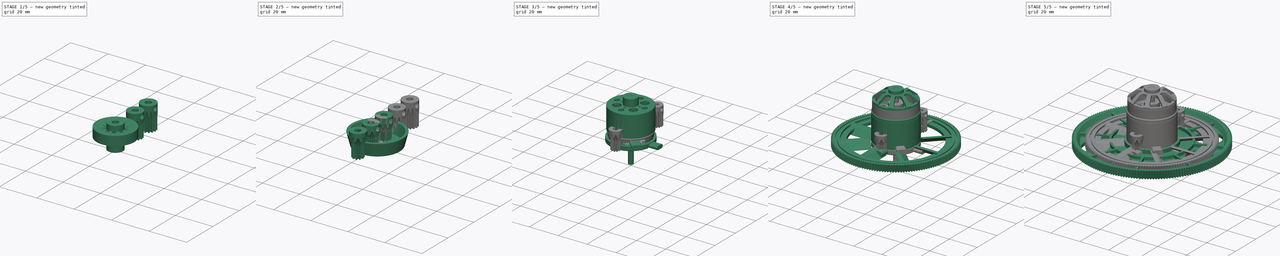
[diagram: build sequence overview — one tinted view per stage of 5, left to right]
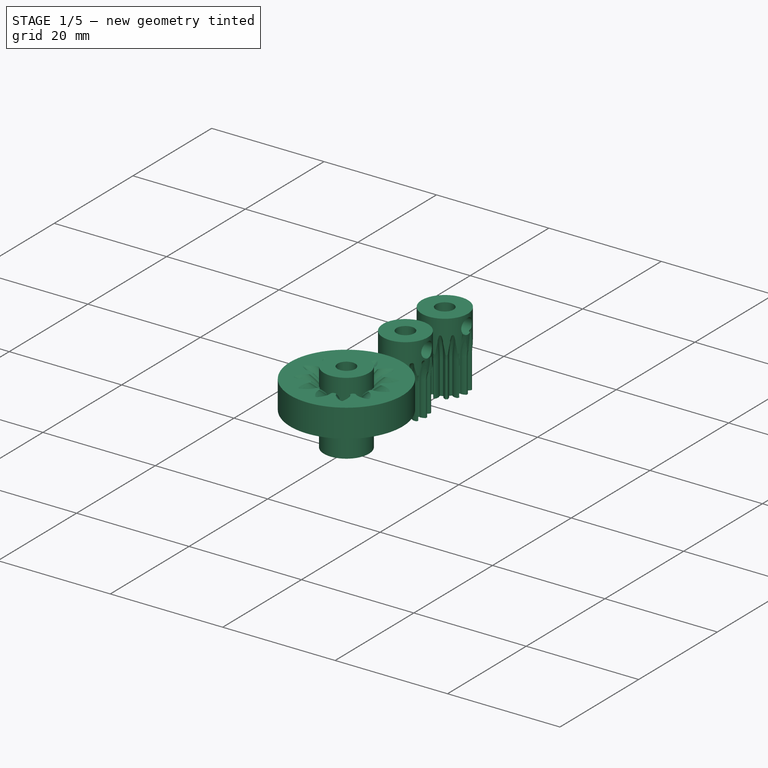
[diagram: stage 1 of 5 — iso view after this stage's code; geometry added in this stage tinted green]
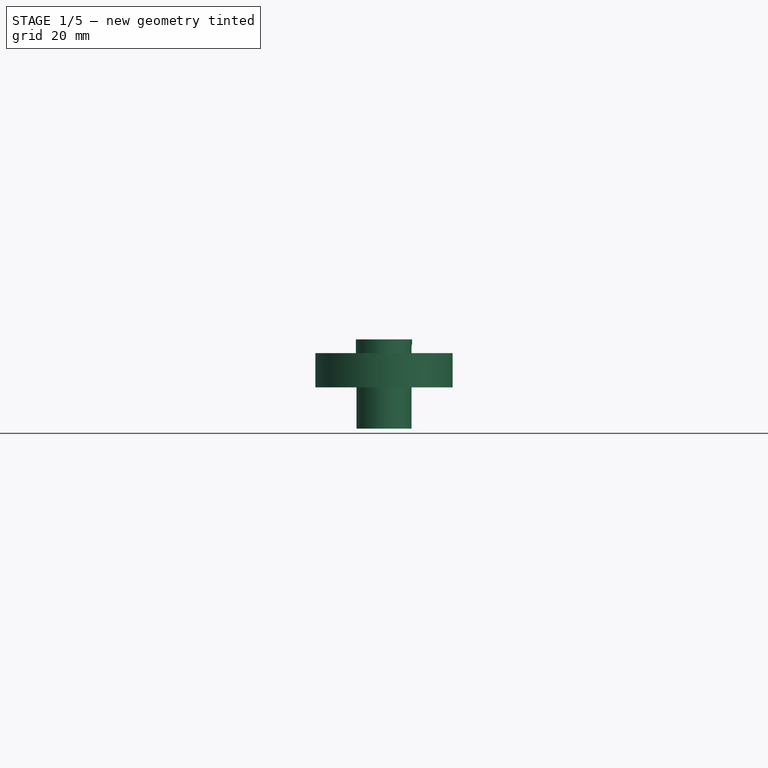
[diagram: stage 1 of 5 — front view after this stage's code; geometry added in this stage tinted green]
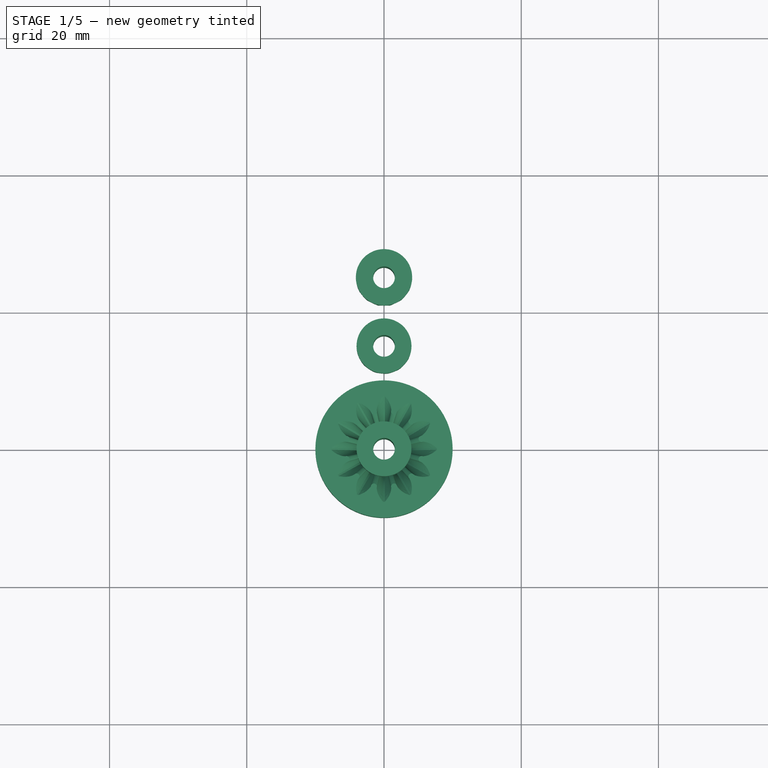
[diagram: stage 1 of 5 — top view after this stage's code; geometry added in this stage tinted green]
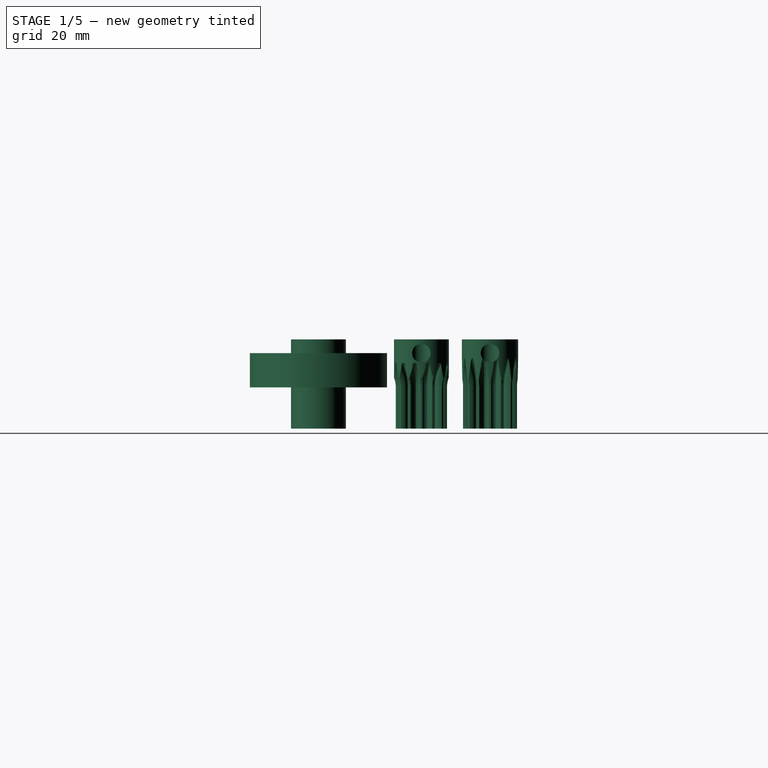
[diagram: stage 1 of 5 — right view after this stage's code; geometry added in this stage tinted green]
FCSTD DOCUMENT  (FreeCAD 0.20R28647 (Git))
Label: Motors_Gears
License: All rights reserved
LicenseURL: http://en.wikipedia.org/wiki/All_rights_reserved
objects: Sketcher::SketchObject×47, PartDesign::Revolution×21, PartDesign::Pocket×19, Part::Part2DObjectPython×18, PartDesign::Body×16, PartDesign::Pad×13, PartDesign::PolarPattern×12, PartDesign::SubtractiveLoft×5, Part::Cut×5, PartDesign::Groove×2
note: 218 computed .brp shape members not serialized (recipe doc carries the construction recipe); baked Part::Feature solids carry a one-line shape summary decoded from their .brp

FEATURE [Part::Part2DObjectPython] InvoluteGear010  label="M05 10Z005"  # Draft 2D object (typed FeaturePython)
  AttachmentOffset = pos=(0,0,6) rot=(0,0,1;0rad)
  ExternalGear = true
  HighPrecision = false
  Modules = 0.5
  NumberOfTeeth = 12
  Placement = pos=(0,0,6) rot=(0,0,1;0rad)
  PressureAngle = 20
FEATURE [Part::Part2DObjectPython] InvoluteGear011  label="M05 10Z006"  # Draft 2D object (typed FeaturePython)
  AttachmentOffset = pos=(0,0,6) rot=(0,0,1;0rad)
  ExternalGear = true
  HighPrecision = false
  Modules = 0.5
  NumberOfTeeth = 12
  Placement = pos=(0,0,6.1) rot=(0,0,1;0rad)
  PressureAngle = 20
FEATURE [Part::Part2DObjectPython] InvoluteGear012  # Draft 2D object (typed FeaturePython)
  ExternalGear = true
  HighPrecision = false
  Modules = 1.1
  NumberOfTeeth = 12
  Placement = pos=(0,0,11) rot=(0,0,1;0rad)
  PressureAngle = 30
FEATURE [Sketcher::SketchObject] Sketch039
  FullyConstrained = true
  MapMode = 5
  Placement = pos=(0,0,0) rot=(1,0,0;1.5708rad)
  Support = -> [XZ_Plane010]
  sketch-geometry (4):
    g0: LineSegment StartX=0 StartY=6 StartZ=0 EndX=-10 EndY=6 EndZ=0
    g1: LineSegment StartX=-10 StartY=6 StartZ=0 EndX=-10 EndY=11 EndZ=0
    g2: LineSegment StartX=-10 StartY=11 StartZ=0 EndX=0 EndY=11 EndZ=0
    g3: LineSegment StartX=0 StartY=11 StartZ=0 EndX=0 EndY=6 EndZ=0
  constraints (12):
    c: Coincident(g0,g1)
    c: Coincident(g1,g2)
    c: Coincident(g2,g3)
    c: Coincident(g3,g0)
    c: Horizontal(g0)
    c: Horizontal(g2)
    c: Vertical(g1)
    c: Vertical(g3)
    c: PointOnObject(g0,g-2)
    c: DistanceY(g0) = 6
    c: DistanceY(g2) = 11
    c: DistanceX(g2,g2) = 10
FEATURE [PartDesign::Revolution] Revolution015
  Angle = 360
  Axis = (0,-2e-16,1)
  Base = (0,0,0)
  Placement = pos=(0,0,0) rot=(1,0,0;1.5708rad)
  Profile = -> Sketch039
  ReferenceAxis = -> Sketch039 [V_Axis]
FEATURE [Sketcher::SketchObject] Sketch040
  FullyConstrained = true
  MapMode = 5
  Placement = pos=(0,0,0) rot=(1,0,0;1.5708rad)
  Support = -> [XZ_Plane011]
  sketch-geometry (4):
    g0: LineSegment StartX=-1.585 StartY=0 StartZ=0 EndX=-4 EndY=0 EndZ=0
    g1: LineSegment StartX=-4 StartY=0 StartZ=0 EndX=-4 EndY=13 EndZ=0
    g2: LineSegment StartX=-4 StartY=13 StartZ=0 EndX=-1.585 EndY=13 EndZ=0
    g3: LineSegment StartX=-1.585 StartY=13 StartZ=0 EndX=-1.585 EndY=0 EndZ=0
  constraints (12):
    c: Coincident(g0,g1)
    c: Coincident(g1,g2)
    c: Coincident(g2,g3)
    c: Coincident(g3,g0)
    c: Horizontal(g0)
    c: Horizontal(g2)
    c: Vertical(g1)
    c: Vertical(g3)
    c: PointOnObject(g0,g-1)
    c: DistanceX(g0) = -1.585
    c: DistanceY(g1,g1) = 13
    c: DistanceX(g1) = -4
FEATURE [PartDesign::Revolution] Revolution016
  Angle = 360
  Axis = (0,2e-16,1)
  Base = (0,0,0)
  Placement = pos=(0,0,0) rot=(1,0,0;1.5708rad)
  Profile = -> Sketch040
  ReferenceAxis = -> Sketch040 [V_Axis]
FEATURE [PartDesign::Body] Body011  label="Body 8d 13h002"
  Group = -> [Sketch040,Revolution016,Sketch041,Pocket017]
  Origin = -> Origin011
  Tip = -> Pocket017
FEATURE [PartDesign::SubtractiveLoft] SubtractiveLoft002
  BaseFeature = -> Revolution015
  Closed = false
  Placement = pos=(0,0,0) rot=(1,0,0;1.5708rad)
  Profile = -> InvoluteGear012
  Ruled = false
  Sections = -> [InvoluteGear011,InvoluteGear010]
FEATURE [Part::Part2DObjectPython] InvoluteGear013  label="M05 10Z007"  # Draft 2D object (typed FeaturePython)
  AttachmentOffset = pos=(0,0,6) rot=(0,0,1;0rad)
  ExternalGear = true
  HighPrecision = false
  Modules = 0.5
  NumberOfTeeth = 13
  Placement = pos=(0,0,6) rot=(0,0,1;0rad)
  PressureAngle = 20
FEATURE [Part::Part2DObjectPython] InvoluteGear014  label="M05 10Z008"  # Draft 2D object (typed FeaturePython)
  AttachmentOffset = pos=(0,0,6) rot=(0,0,1;0rad)
  ExternalGear = true
  HighPrecision = false
  Modules = 0.5
  NumberOfTeeth = 13
  Placement = pos=(0,0,6.1) rot=(0,0,1;0rad)
  PressureAngle = 20
FEATURE [Part::Part2DObjectPython] InvoluteGear015  # Draft 2D object (typed FeaturePython)
  ExternalGear = true
  HighPrecision = false
  Modules = 1.1
  NumberOfTeeth = 13
  Placement = pos=(0,0,11) rot=(0,0,1;0rad)
  PressureAngle = 30
FEATURE [Sketcher::SketchObject] Sketch042
  FullyConstrained = true
  MapMode = 5
  Placement = pos=(0,0,0) rot=(1,0,0;1.5708rad)
  Support = -> [XZ_Plane012]
  sketch-geometry (4):
    g0: LineSegment StartX=0 StartY=6 StartZ=0 EndX=-10 EndY=6 EndZ=0
    g1: LineSegment StartX=-10 StartY=6 StartZ=0 EndX=-10 EndY=11 EndZ=0
    g2: LineSegment StartX=-10 StartY=11 StartZ=0 EndX=0 EndY=11 EndZ=0
    g3: LineSegment StartX=0 StartY=11 StartZ=0 EndX=0 EndY=6 EndZ=0
  constraints (12):
    c: Coincident(g0,g1)
    c: Coincident(g1,g2)
    c: Coincident(g2,g3)
    c: Coincident(g3,g0)
    c: Horizontal(g0)
    c: Horizontal(g2)
    c: Vertical(g1)
    c: Vertical(g3)
    c: PointOnObject(g0,g-2)
    c: DistanceY(g0) = 6
    c: DistanceY(g2) = 11
    c: DistanceX(g2,g2) = 10
FEATURE [PartDesign::Revolution] Revolution017
  Angle = 360
  Axis = (0,-2e-16,1)
  Base = (0,0,0)
  Placement = pos=(0,0,0) rot=(1,0,0;1.5708rad)
  Profile = -> Sketch042
  ReferenceAxis = -> Sketch042 [V_Axis]
FEATURE [Sketcher::SketchObject] Sketch043
  FullyConstrained = true
  MapMode = 5
  Placement = pos=(0,0,0) rot=(1,0,0;1.5708rad)
  Support = -> [XZ_Plane013]
  sketch-geometry (4):
    g0: LineSegment StartX=-1.585 StartY=0 StartZ=0 EndX=-4 EndY=0 EndZ=0
    g1: LineSegment StartX=-4 StartY=0 StartZ=0 EndX=-4 EndY=13 EndZ=0
    g2: LineSegment StartX=-4 StartY=13 StartZ=0 EndX=-1.585 EndY=13 EndZ=0
    g3: LineSegment StartX=-1.585 StartY=13 StartZ=0 EndX=-1.585 EndY=0 EndZ=0
  constraints (12):
    c: Coincident(g0,g1)
    c: Coincident(g1,g2)
    c: Coincident(g2,g3)
    c: Coincident(g3,g0)
    c: Horizontal(g0)
    c: Horizontal(g2)
    c: Vertical(g1)
    c: Vertical(g3)
    c: PointOnObject(g0,g-1)
    c: DistanceX(g0) = -1.585
    c: DistanceY(g1,g1) = 13
    c: DistanceX(g1) = -4
FEATURE [PartDesign::Revolution] Revolution018
  Angle = 360
  Axis = (0,2e-16,1)
  Base = (0,0,0)
  Placement = pos=(0,0,0) rot=(1,0,0;1.5708rad)
  Profile = -> Sketch043
  ReferenceAxis = -> Sketch043 [V_Axis]
FEATURE [Sketcher::SketchObject] Sketch044
  AttachmentOffset = pos=(0,0,0) rot=(0,1,0;1.5708rad)
  FullyConstrained = true
  MapMode = 5
  Placement = pos=(0,0,0) rot=(0.57735,0.57735,0.57735;2.0944rad)
  Support = -> [XZ_Plane013]
  sketch-geometry (1):
    g0: Circle CenterX=0 CenterY=11 CenterZ=0 NormalX=0 NormalY=0 NormalZ=1 AngleXU=0 Radius=1.35
  constraints (3):
    c: PointOnObject(g0,g-2)
    c: Diameter(g0) = 2.7
    c: DistanceY(g0) = 11
FEATURE [PartDesign::Pocket] Pocket018
  BaseFeature = -> Revolution018
  Direction = (-1,2e-16,0)
  Length = 5
  Length2 = 5
  Placement = pos=(0,0,0) rot=(1,0,0;1.5708rad)
  Profile = -> Sketch044
  ReferenceAxis = -> Sketch044 [N_Axis]
  Reversed = true
  Type = 1
FEATURE [PartDesign::Body] Body013  label="Body 8d 13h003"
  Group = -> [Sketch043,Revolution018,Sketch044,Pocket018]
  Origin = -> Origin013
  Tip = -> Pocket018
FEATURE [PartDesign::SubtractiveLoft] SubtractiveLoft003
  BaseFeature = -> Revolution017
  Closed = false
  Placement = pos=(0,0,0) rot=(1,0,0;1.5708rad)
  Profile = -> InvoluteGear015
  Ruled = false
  Sections = -> [InvoluteGear014,InvoluteGear013]
FEATURE [PartDesign::Pad] Pad011
  BaseFeature = -> SubtractiveLoft003
  Direction = (0,-1e-16,-1)
  Length = 6
  Length2 = 10
  Placement = pos=(0,0,0) rot=(1,0,0;1.5708rad)
  Profile = -> SubtractiveLoft003 [Face1]
  Type = 0
FEATURE [PartDesign::Body] Body012  label="Cutter M05 13Z"
  Group = -> [InvoluteGear013,InvoluteGear014,InvoluteGear015,Sketch042,Revolution017,SubtractiveLoft003,Pad011]
  Origin = -> Origin012
  Tip = -> Pad011
FEATURE [Part::Cut] Cut003  label="PinionM05 13Z"
  Base = -> Body013
  Placement = pos=(0,15,0) rot=(0,0,1;0rad)
  Tool = -> Body012
FEATURE [Part::Part2DObjectPython] InvoluteGear016  label="M05 10Z009"  # Draft 2D object (typed FeaturePython)
  AttachmentOffset = pos=(0,0,6) rot=(0,0,1;0rad)
  ExternalGear = true
  HighPrecision = false
  Modules = 0.5
  NumberOfTeeth = 14
  Placement = pos=(0,0,6) rot=(0,0,1;0rad)
  PressureAngle = 20
FEATURE [Part::Part2DObjectPython] InvoluteGear017  label="M05 10Z010"  # Draft 2D object (typed FeaturePython)
  AttachmentOffset = pos=(0,0,6) rot=(0,0,1;0rad)
  ExternalGear = true
  HighPrecision = false
  Modules = 0.5
  NumberOfTeeth = 14
  Placement = pos=(0,0,6.1) rot=(0,0,1;0rad)
  PressureAngle = 20
FEATURE [Part::Part2DObjectPython] InvoluteGear018  # Draft 2D object (typed FeaturePython)
  ExternalGear = true
  HighPrecision = false
  Modules = 0.8
  NumberOfTeeth = 14
  Placement = pos=(0,0,11) rot=(0,0,1;0rad)
  PressureAngle = 30
FEATURE [Sketcher::SketchObject] Sketch045
  FullyConstrained = true
  MapMode = 5
  Placement = pos=(0,0,0) rot=(1,0,0;1.5708rad)
  Support = -> [XZ_Plane014]
  sketch-geometry (4):
    g0: LineSegment StartX=0 StartY=6 StartZ=0 EndX=-10 EndY=6 EndZ=0
    g1: LineSegment StartX=-10 StartY=6 StartZ=0 EndX=-10 EndY=11 EndZ=0
    g2: LineSegment StartX=-10 StartY=11 StartZ=0 EndX=0 EndY=11 EndZ=0
    g3: LineSegment StartX=0 StartY=11 StartZ=0 EndX=0 EndY=6 EndZ=0
  constraints (12):
    c: Coincident(g0,g1)
    c: Coincident(g1,g2)
    c: Coincident(g2,g3)
    c: Coincident(g3,g0)
    c: Horizontal(g0)
    c: Horizontal(g2)
    c: Vertical(g1)
    c: Vertical(g3)
    c: PointOnObject(g0,g-2)
    c: DistanceY(g0) = 6
    c: DistanceY(g2) = 11
    c: DistanceX(g2,g2) = 10
FEATURE [PartDesign::Revolution] Revolution019
  Angle = 360
  Axis = (0,-2e-16,1)
  Base = (0,0,0)
  Placement = pos=(0,0,0) rot=(1,0,0;1.5708rad)
  Profile = -> Sketch045
  ReferenceAxis = -> Sketch045 [V_Axis]
FEATURE [Sketcher::SketchObject] Sketch046
  FullyConstrained = true
  MapMode = 5
  Placement = pos=(0,0,0) rot=(1,0,0;1.5708rad)
  Support = -> [XZ_Plane015]
  sketch-geometry (4):
    g0: LineSegment StartX=-1.585 StartY=0 StartZ=0 EndX=-4.1 EndY=0 EndZ=0
    g1: LineSegment StartX=-4.1 StartY=0 StartZ=0 EndX=-4.1 EndY=13 EndZ=0
    g2: LineSegment StartX=-4.1 StartY=13 StartZ=0 EndX=-1.585 EndY=13 EndZ=0
    g3: LineSegment StartX=-1.585 StartY=13 StartZ=0 EndX=-1.585 EndY=0 EndZ=0
  constraints (12):
    c: Coincident(g0,g1)
    c: Coincident(g1,g2)
    c: Coincident(g2,g3)
    c: Coincident(g3,g0)
    c: Horizontal(g0)
    c: Horizontal(g2)
    c: Vertical(g1)
    c: Vertical(g3)
    c: PointOnObject(g0,g-1)
    c: DistanceX(g0) = -1.585
    c: DistanceY(g1,g1) = 13
    c: DistanceX(g1) = -4.1
FEATURE [PartDesign::Revolution] Revolution020
  Angle = 360
  Axis = (0,-2e-16,1)
  Base = (0,0,0)
  Placement = pos=(0,0,0) rot=(1,0,0;1.5708rad)
  Profile = -> Sketch046
  ReferenceAxis = -> Sketch046 [V_Axis]
FEATURE [Sketcher::SketchObject] Sketch047
  AttachmentOffset = pos=(0,0,0) rot=(0,1,0;1.5708rad)
  FullyConstrained = true
  MapMode = 5
  Placement = pos=(0,0,0) rot=(0.57735,0.57735,0.57735;2.0944rad)
  Support = -> [XZ_Plane015]
  sketch-geometry (1):
    g0: Circle CenterX=0 CenterY=11 CenterZ=0 NormalX=0 NormalY=0 NormalZ=1 AngleXU=0 Radius=1.35
  constraints (3):
    c: PointOnObject(g0,g-2)
    c: Diameter(g0) = 2.7
    c: DistanceY(g0) = 11
FEATURE [PartDesign::Pocket] Pocket019
  BaseFeature = -> Revolution020
  Direction = (-1,2e-16,0)
  Length = 5
  Length2 = 5
  Placement = pos=(0,0,0) rot=(1,0,0;1.5708rad)
  Profile = -> Sketch047
  ReferenceAxis = -> Sketch047 [N_Axis]
  Reversed = true
  Type = 1
FEATURE [PartDesign::Body] Body015  label="Body 8d 13h004"
  Group = -> [Sketch046,Revolution020,Sketch047,Pocket019]
  Origin = -> Origin015
  Tip = -> Pocket019
FEATURE [PartDesign::SubtractiveLoft] SubtractiveLoft004
  BaseFeature = -> Revolution019
  Closed = false
  Placement = pos=(0,0,0) rot=(1,0,0;1.5708rad)
  Profile = -> InvoluteGear018
  Ruled = false
  Sections = -> [InvoluteGear017,InvoluteGear016]
FEATURE [PartDesign::Pad] Pad012
  BaseFeature = -> SubtractiveLoft004
  Direction = (0,-1e-16,-1)
  Length = 6
  Length2 = 10
  Placement = pos=(0,0,0) rot=(1,0,0;1.5708rad)
  Profile = -> SubtractiveLoft004 [Face1]
  Type = 0
FEATURE [PartDesign::Body] Body014  label="Cutter M05 14Z"
  Group = -> [InvoluteGear016,InvoluteGear017,InvoluteGear018,Sketch045,Revolution019,SubtractiveLoft004,Pad012]
  Origin = -> Origin014
  Tip = -> Pad012
FEATURE [Part::Cut] Cut004  label="PinionM05 14Z"
  Base = -> Body015
  Placement = pos=(0,25,0) rot=(0,0,1;0rad)
  Tool = -> Body014
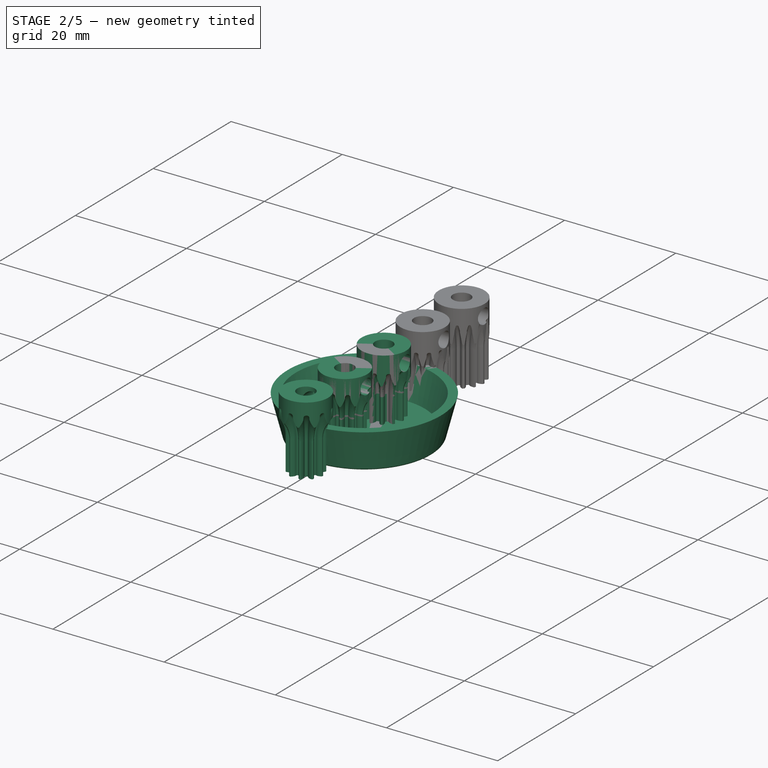
[diagram: stage 2 of 5 — iso view after this stage's code; geometry added in this stage tinted green]
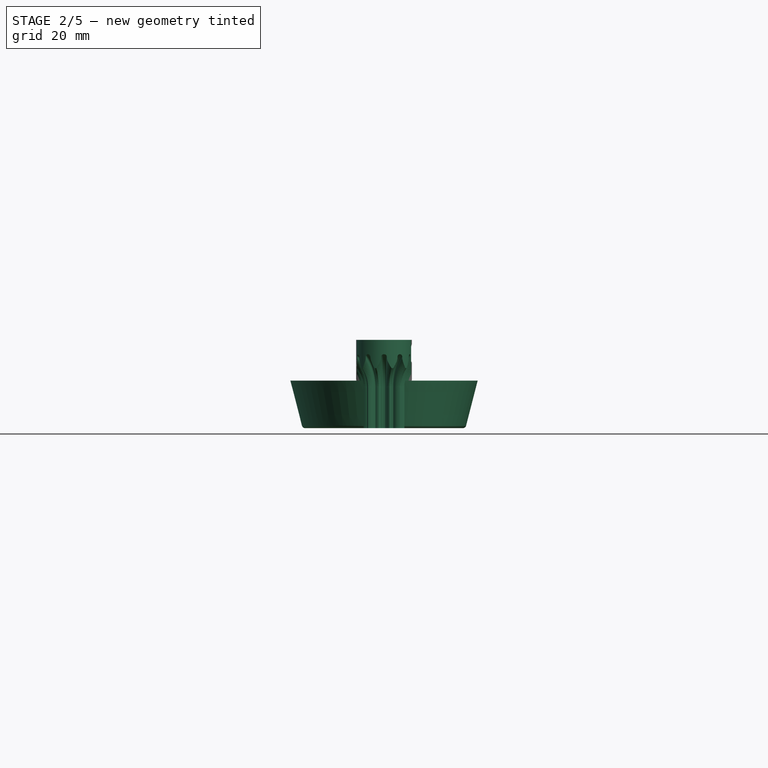
[diagram: stage 2 of 5 — front view after this stage's code; geometry added in this stage tinted green]
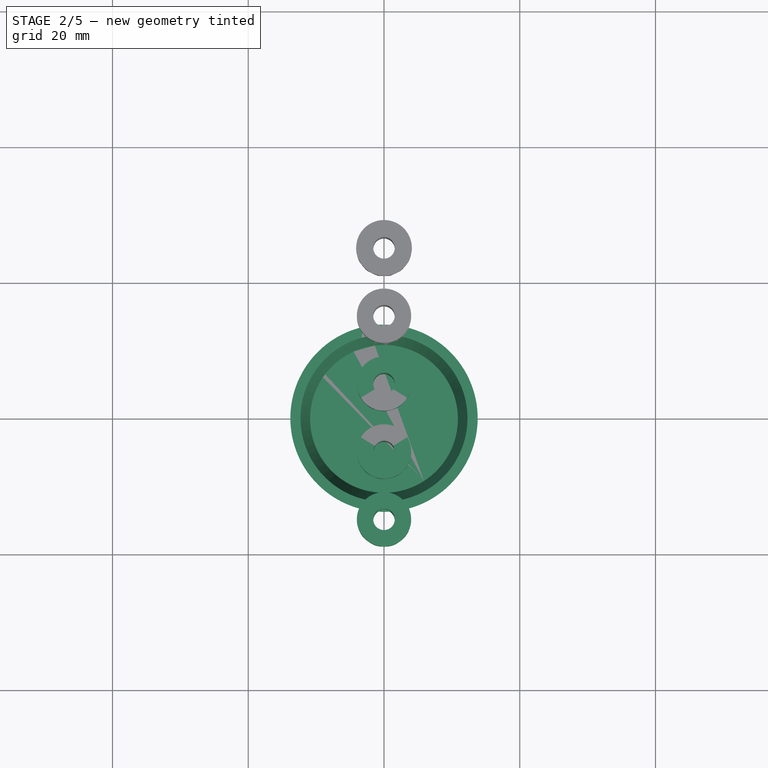
[diagram: stage 2 of 5 — top view after this stage's code; geometry added in this stage tinted green]
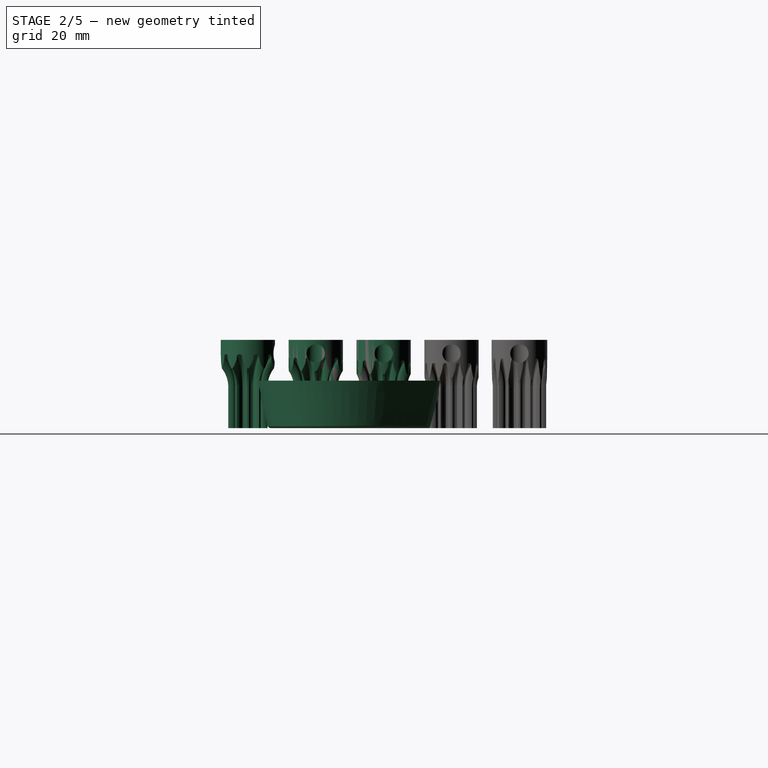
[diagram: stage 2 of 5 — right view after this stage's code; geometry added in this stage tinted green]
FEATURE [PartDesign::Body] Body004  label="Kontronik Motor"
  Group = -> [Sketch018,Revolution005,Sketch019,Pocket008,PolarPattern007,Sketch020,Sketch024,Pocket010,Pad006,Revolution006,Sketch021,Sketch022,Revolution007,Sketch023,Pocket009,PolarPattern008]
  Origin = -> Origin004
  Placement = pos=(-100,0,0) rot=(0,0,1;0rad)
  Tip = -> PolarPattern008
FEATURE [Sketcher::SketchObject] Sketch025
  FullyConstrained = true
  MapMode = 5
  Placement = pos=(0,0,0) rot=(1,0,0;1.5708rad)
  Support = -> [XZ_Plane005]
  sketch-geometry (8):
    g0: LineSegment StartX=0 StartY=0 StartZ=0 EndX=0 EndY=1.5 EndZ=0
    g1: LineSegment StartX=0 StartY=1.5 StartZ=0 EndX=10.8857 EndY=1.5 EndZ=0
    g2: LineSegment StartX=10.8857 StartY=1.5 StartZ=0 EndX=12.3 EndY=7 EndZ=0
    g3: LineSegment StartX=12.3 StartY=7 StartZ=0 EndX=13.8 EndY=7 EndZ=0
    g4: LineSegment StartX=13.8 StartY=7 StartZ=0 EndX=12.0966 EndY=0.375479 EndZ=0
    g5: LineSegment StartX=11.6123 StartY=0 StartZ=0 EndX=0 EndY=0 EndZ=0
    g6: ArcOfCircle CenterX=11.6123 CenterY=0.5 CenterZ=0 NormalX=0 NormalY=0 NormalZ=1 AngleXU=0 Radius=0.5 StartAngle=4.71239 EndAngle=6.0315
    g7: GeomPoint X=12 Y=0 Z=0
  constraints (21):
    c: Coincident(g-1,g0)
    c: PointOnObject(g0,g-2)
    c: Coincident(g0,g1)
    c: Horizontal(g1)
    c: Coincident(g2,g3)
    c: Horizontal(g3)
    c: PointOnObject(g7,g-1)
    c: Coincident(g5,g0)
    c: Coincident(g2,g1)
    c: Equal(g3,g0)
    c: DistanceX(g3,g3) = 1.5
    c: Coincident(g4,g3)
    c: DistanceY(g3) = 7
    c: DistanceX(g3) = 13.8
    c: Parallel(g2,g4)
    c: DistanceX(g7) = 12
    c: PointOnObject(g7,g4)
    c: PointOnObject(g7,g5)
    c: Tangent(g4,g6) = 1.5708
    c: Tangent(g5,g6) = 1.5708
    c: Diameter(g6) = 1
FEATURE [PartDesign::Revolution] Revolution008  label="Mount002"
  Angle = 360
  Axis = (0,-2e-16,1)
  Base = (0,0,0)
  Placement = pos=(0,0,0) rot=(1,0,0;1.5708rad)
  Profile = -> Sketch025
  ReferenceAxis = -> Sketch025 [V_Axis]
  Reversed = true
FEATURE [PartDesign::Body] Body005  label="Hacker A20-26M"
  Group = -> [Sketch025,Revolution008,Sketch026,Pocket011,PolarPattern009,Sketch027,Sketch032,Pocket014,PolarPattern011,Pad007,Revolution009,Sketch028,Sketch029,Revolution010,Sketch030,Pocket012,PolarPattern010]
  Origin = -> Origin005
  Placement = pos=(50,0,0) rot=(0,0,1;0rad)
  Tip = -> PolarPattern011
FEATURE [Part::Part2DObjectPython] InvoluteGear004  label="M05 10Z001"  # Draft 2D object (typed FeaturePython)
  AttachmentOffset = pos=(0,0,6) rot=(0,0,1;0rad)
  ExternalGear = true
  HighPrecision = false
  Modules = 0.5
  NumberOfTeeth = 10
  Placement = pos=(0,0,6) rot=(0,0,1;0rad)
  PressureAngle = 20
FEATURE [Part::Part2DObjectPython] InvoluteGear005  label="M05 10Z002"  # Draft 2D object (typed FeaturePython)
  AttachmentOffset = pos=(0,0,6) rot=(0,0,1;0rad)
  ExternalGear = true
  HighPrecision = false
  Modules = 0.5
  NumberOfTeeth = 10
  Placement = pos=(0,0,6.1) rot=(0,0,1;0rad)
  PressureAngle = 20
FEATURE [Part::Part2DObjectPython] InvoluteGear006  # Draft 2D object (typed FeaturePython)
  ExternalGear = true
  HighPrecision = false
  Modules = 1.1
  NumberOfTeeth = 10
  Placement = pos=(0,0,11) rot=(0,0,1;0rad)
  PressureAngle = 30
FEATURE [Sketcher::SketchObject] Sketch033
  FullyConstrained = true
  MapMode = 5
  Placement = pos=(0,0,0) rot=(1,0,0;1.5708rad)
  Support = -> [XZ_Plane006]
  sketch-geometry (4):
    g0: LineSegment StartX=0 StartY=6 StartZ=0 EndX=-10 EndY=6 EndZ=0
    g1: LineSegment StartX=-10 StartY=6 StartZ=0 EndX=-10 EndY=11 EndZ=0
    g2: LineSegment StartX=-10 StartY=11 StartZ=0 EndX=0 EndY=11 EndZ=0
    g3: LineSegment StartX=0 StartY=11 StartZ=0 EndX=0 EndY=6 EndZ=0
  constraints (12):
    c: Coincident(g0,g1)
    c: Coincident(g1,g2)
    c: Coincident(g2,g3)
    c: Coincident(g3,g0)
    c: Horizontal(g0)
    c: Horizontal(g2)
    c: Vertical(g1)
    c: Vertical(g3)
    c: PointOnObject(g0,g-2)
    c: DistanceY(g0) = 6
    c: DistanceY(g2) = 11
    c: DistanceX(g2,g2) = 10
FEATURE [PartDesign::Revolution] Revolution011
  Angle = 360
  Axis = (0,-2e-16,1)
  Base = (0,0,0)
  Placement = pos=(0,0,0) rot=(1,0,0;1.5708rad)
  Profile = -> Sketch033
  ReferenceAxis = -> Sketch033 [V_Axis]
FEATURE [PartDesign::SubtractiveLoft] SubtractiveLoft
  BaseFeature = -> Revolution011
  Closed = false
  Placement = pos=(0,0,0) rot=(1,0,0;1.5708rad)
  Profile = -> InvoluteGear006
  Ruled = false
  Sections = -> [InvoluteGear005,InvoluteGear004]
FEATURE [PartDesign::Pad] Pad008
  BaseFeature = -> SubtractiveLoft
  Direction = (0,2e-16,-1)
  Length = 6
  Length2 = 10
  Placement = pos=(0,0,0) rot=(1,0,0;1.5708rad)
  Profile = -> SubtractiveLoft [Face1]
  Type = 0
FEATURE [PartDesign::Body] Body006  label="Cutter M05 10Z"
  Group = -> [InvoluteGear004,InvoluteGear005,InvoluteGear006,Sketch033,Revolution011,SubtractiveLoft,Pad008]
  Origin = -> Origin006
  Tip = -> Pad008
FEATURE [Sketcher::SketchObject] Sketch034
  FullyConstrained = true
  MapMode = 5
  Placement = pos=(0,0,0) rot=(1,0,0;1.5708rad)
  Support = -> [XZ_Plane007]
  sketch-geometry (4):
    g0: LineSegment StartX=-1.585 StartY=0 StartZ=0 EndX=-4 EndY=0 EndZ=0
    g1: LineSegment StartX=-4 StartY=0 StartZ=0 EndX=-4 EndY=13 EndZ=0
    g2: LineSegment StartX=-4 StartY=13 StartZ=0 EndX=-1.585 EndY=13 EndZ=0
    g3: LineSegment StartX=-1.585 StartY=13 StartZ=0 EndX=-1.585 EndY=0 EndZ=0
  constraints (12):
    c: Coincident(g0,g1)
    c: Coincident(g1,g2)
    c: Coincident(g2,g3)
    c: Coincident(g3,g0)
    c: Horizontal(g0)
    c: Horizontal(g2)
    c: Vertical(g1)
    c: Vertical(g3)
    c: PointOnObject(g0,g-1)
    c: DistanceX(g0) = -1.585
    c: DistanceY(g1,g1) = 13
    c: DistanceX(g1) = -4
FEATURE [PartDesign::Revolution] Revolution012
  Angle = 360
  Axis = (0,2e-16,1)
  Base = (0,0,0)
  Placement = pos=(0,0,0) rot=(1,0,0;1.5708rad)
  Profile = -> Sketch034
  ReferenceAxis = -> Sketch034 [V_Axis]
FEATURE [Sketcher::SketchObject] Sketch035
  FullyConstrained = true
  MapMode = 5
  Placement = pos=(0,0,0) rot=(1,0,0;1.5708rad)
  Support = -> [XZ_Plane007]
  sketch-geometry (1):
    g0: Circle CenterX=0 CenterY=11 CenterZ=0 NormalX=0 NormalY=0 NormalZ=1 AngleXU=0 Radius=1.35
  constraints (3):
    c: PointOnObject(g0,g-2)
    c: Diameter(g0) = 2.7
    c: DistanceY(g0) = 11
FEATURE [PartDesign::Pocket] Pocket015
  BaseFeature = -> Revolution012
  Direction = (0,1,-2e-16)
  Length = 5
  Length2 = 5
  Placement = pos=(0,0,0) rot=(1,0,0;1.5708rad)
  Profile = -> Sketch035
  ReferenceAxis = -> Sketch035 [N_Axis]
  Type = 1
FEATURE [PartDesign::Body] Body007  label="Body 8d 13h"
  Group = -> [Sketch034,Revolution012,Sketch035,Pocket015]
  Origin = -> Origin007
  Tip = -> Pocket015
FEATURE [Part::Cut] Cut  label="PinionM05 10Z"
  Base = -> Body007
  Placement = pos=(0,-15,0) rot=(0,0,1;0rad)
  Tool = -> Body006
FEATURE [Part::Part2DObjectPython] InvoluteGear007  label="M05 10Z003"  # Draft 2D object (typed FeaturePython)
  AttachmentOffset = pos=(0,0,6) rot=(0,0,1;0rad)
  ExternalGear = true
  HighPrecision = false
  Modules = 0.5
  NumberOfTeeth = 11
  Placement = pos=(0,0,6) rot=(0,0,1;0rad)
  PressureAngle = 20
FEATURE [Part::Part2DObjectPython] InvoluteGear008  label="M05 10Z004"  # Draft 2D object (typed FeaturePython)
  AttachmentOffset = pos=(0,0,6) rot=(0,0,1;0rad)
  ExternalGear = true
  HighPrecision = false
  Modules = 0.5
  NumberOfTeeth = 11
  Placement = pos=(0,0,6.1) rot=(0,0,1;0rad)
  PressureAngle = 20
FEATURE [Part::Part2DObjectPython] InvoluteGear009  # Draft 2D object (typed FeaturePython)
  ExternalGear = true
  HighPrecision = false
  Modules = 1.1
  NumberOfTeeth = 11
  Placement = pos=(0,0,11) rot=(0,0,1;0rad)
  PressureAngle = 30
FEATURE [Sketcher::SketchObject] Sketch036
  FullyConstrained = true
  MapMode = 5
  Placement = pos=(0,0,0) rot=(1,0,0;1.5708rad)
  Support = -> [XZ_Plane008]
  sketch-geometry (4):
    g0: LineSegment StartX=0 StartY=6 StartZ=0 EndX=-10 EndY=6 EndZ=0
    g1: LineSegment StartX=-10 StartY=6 StartZ=0 EndX=-10 EndY=11 EndZ=0
    g2: LineSegment StartX=-10 StartY=11 StartZ=0 EndX=0 EndY=11 EndZ=0
    g3: LineSegment StartX=0 StartY=11 StartZ=0 EndX=0 EndY=6 EndZ=0
  constraints (12):
    c: Coincident(g0,g1)
    c: Coincident(g1,g2)
    c: Coincident(g2,g3)
    c: Coincident(g3,g0)
    c: Horizontal(g0)
    c: Horizontal(g2)
    c: Vertical(g1)
    c: Vertical(g3)
    c: PointOnObject(g0,g-2)
    c: DistanceY(g0) = 6
    c: DistanceY(g2) = 11
    c: DistanceX(g2,g2) = 10
FEATURE [PartDesign::Revolution] Revolution013
  Angle = 360
  Axis = (0,-2e-16,1)
  Base = (0,0,0)
  Placement = pos=(0,0,0) rot=(1,0,0;1.5708rad)
  Profile = -> Sketch036
  ReferenceAxis = -> Sketch036 [V_Axis]
FEATURE [Sketcher::SketchObject] Sketch037
  FullyConstrained = true
  MapMode = 5
  Placement = pos=(0,0,0) rot=(1,0,0;1.5708rad)
  Support = -> [XZ_Plane009]
  sketch-geometry (4):
    g0: LineSegment StartX=-1.585 StartY=0 StartZ=0 EndX=-4 EndY=0 EndZ=0
    g1: LineSegment StartX=-4 StartY=0 StartZ=0 EndX=-4 EndY=13 EndZ=0
    g2: LineSegment StartX=-4 StartY=13 StartZ=0 EndX=-1.585 EndY=13 EndZ=0
    g3: LineSegment StartX=-1.585 StartY=13 StartZ=0 EndX=-1.585 EndY=0 EndZ=0
  constraints (12):
    c: Coincident(g0,g1)
    c: Coincident(g1,g2)
    c: Coincident(g2,g3)
    c: Coincident(g3,g0)
    c: Horizontal(g0)
    c: Horizontal(g2)
    c: Vertical(g1)
    c: Vertical(g3)
    c: PointOnObject(g0,g-1)
    c: DistanceX(g0) = -1.585
    c: DistanceY(g1,g1) = 13
    c: DistanceX(g1) = -4
FEATURE [PartDesign::Revolution] Revolution014
  Angle = 360
  Axis = (0,2e-16,1)
  Base = (0,0,0)
  Placement = pos=(0,0,0) rot=(1,0,0;1.5708rad)
  Profile = -> Sketch037
  ReferenceAxis = -> Sketch037 [V_Axis]
FEATURE [Sketcher::SketchObject] Sketch038
  AttachmentOffset = pos=(0,0,0) rot=(0,1,0;1.5708rad)
  FullyConstrained = true
  MapMode = 5
  Placement = pos=(0,0,0) rot=(0.57735,0.57735,0.57735;2.0944rad)
  Support = -> [XZ_Plane009]
  sketch-geometry (1):
    g0: Circle CenterX=0 CenterY=11 CenterZ=0 NormalX=0 NormalY=0 NormalZ=1 AngleXU=0 Radius=1.35
  constraints (3):
    c: PointOnObject(g0,g-2)
    c: Diameter(g0) = 2.7
    c: DistanceY(g0) = 11
FEATURE [PartDesign::Pocket] Pocket016
  BaseFeature = -> Revolution014
  Direction = (-1,2e-16,0)
  Length = 5
  Length2 = 5
  Placement = pos=(0,0,0) rot=(1,0,0;1.5708rad)
  Profile = -> Sketch038
  ReferenceAxis = -> Sketch038 [N_Axis]
  Reversed = true
  Type = 1
FEATURE [PartDesign::Body] Body009  label="Body 8d 13h001"
  Group = -> [Sketch037,Revolution014,Sketch038,Pocket016]
  Origin = -> Origin009
  Tip = -> Pocket016
FEATURE [PartDesign::SubtractiveLoft] SubtractiveLoft001
  BaseFeature = -> Revolution013
  Closed = false
  Placement = pos=(0,0,0) rot=(1,0,0;1.5708rad)
  Profile = -> InvoluteGear009
  Ruled = false
  Sections = -> [InvoluteGear008,InvoluteGear007]
FEATURE [PartDesign::Pad] Pad009
  BaseFeature = -> SubtractiveLoft001
  Direction = (0,-3e-16,-1)
  Length = 6
  Length2 = 10
  Placement = pos=(0,0,0) rot=(1,0,0;1.5708rad)
  Profile = -> SubtractiveLoft001 [Face1]
  Type = 0
FEATURE [PartDesign::Body] Body008  label="Cutter M05 11Z"
  Group = -> [InvoluteGear007,InvoluteGear008,InvoluteGear009,Sketch036,Revolution013,SubtractiveLoft001,Pad009]
  Origin = -> Origin008
  Tip = -> Pad009
FEATURE [Part::Cut] Cut001  label="PinionM05 11Z"
  Base = -> Body009
  Placement = pos=(0,-5,0) rot=(0,0,1;0rad)
  Tool = -> Body008
FEATURE [Sketcher::SketchObject] Sketch041
  AttachmentOffset = pos=(0,0,0) rot=(0,1,0;1.5708rad)
  FullyConstrained = true
  MapMode = 5
  Placement = pos=(0,0,0) rot=(0.57735,0.57735,0.57735;2.0944rad)
  Support = -> [XZ_Plane011]
  sketch-geometry (1):
    g0: Circle CenterX=0 CenterY=11 CenterZ=0 NormalX=0 NormalY=0 NormalZ=1 AngleXU=0 Radius=1.35
  constraints (3):
    c: PointOnObject(g0,g-2)
    c: Diameter(g0) = 2.7
    c: DistanceY(g0) = 11
FEATURE [PartDesign::Pocket] Pocket017
  BaseFeature = -> Revolution016
  Direction = (-1,2e-16,0)
  Length = 5
  Length2 = 5
  Placement = pos=(0,0,0) rot=(1,0,0;1.5708rad)
  Profile = -> Sketch041
  ReferenceAxis = -> Sketch041 [N_Axis]
  Reversed = true
  Type = 1
FEATURE [PartDesign::Pad] Pad010
  BaseFeature = -> SubtractiveLoft002
  Direction = (0,-1e-16,-1)
  Length = 6
  Length2 = 10
  Placement = pos=(0,0,0) rot=(1,0,0;1.5708rad)
  Profile = -> SubtractiveLoft002 [Face1]
  Type = 0
FEATURE [PartDesign::Body] Body010  label="Cutter M05 12Z"
  Group = -> [InvoluteGear010,InvoluteGear011,InvoluteGear012,Sketch039,Revolution015,SubtractiveLoft002,Pad010]
  Origin = -> Origin010
  Tip = -> Pad010
FEATURE [Part::Cut] Cut002  label="PinionM05 12Z"
  Base = -> Body011
  Placement = pos=(0,5,0) rot=(0,0,1;0rad)
  Tool = -> Body010
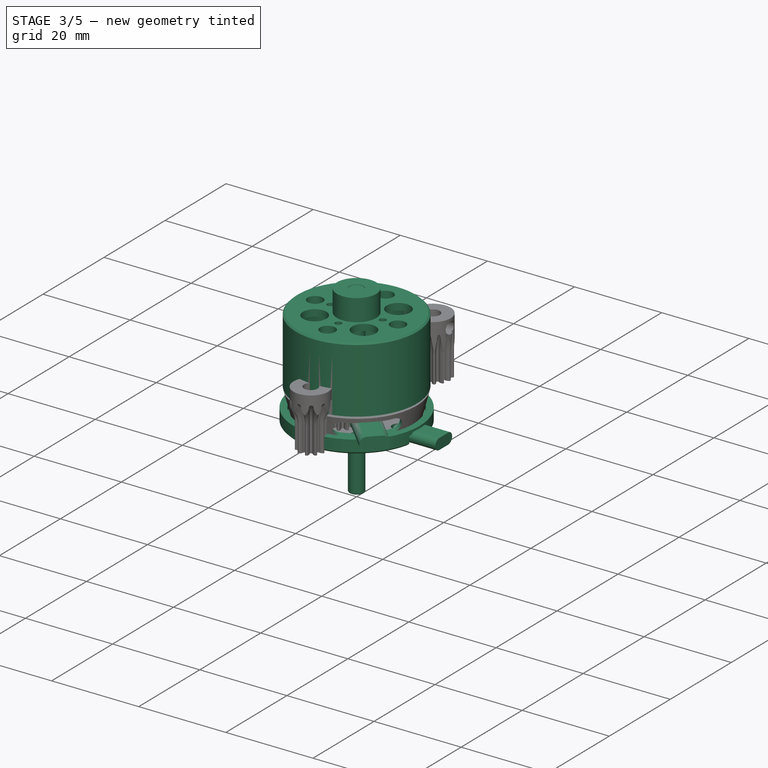
[diagram: stage 3 of 5 — iso view after this stage's code; geometry added in this stage tinted green]
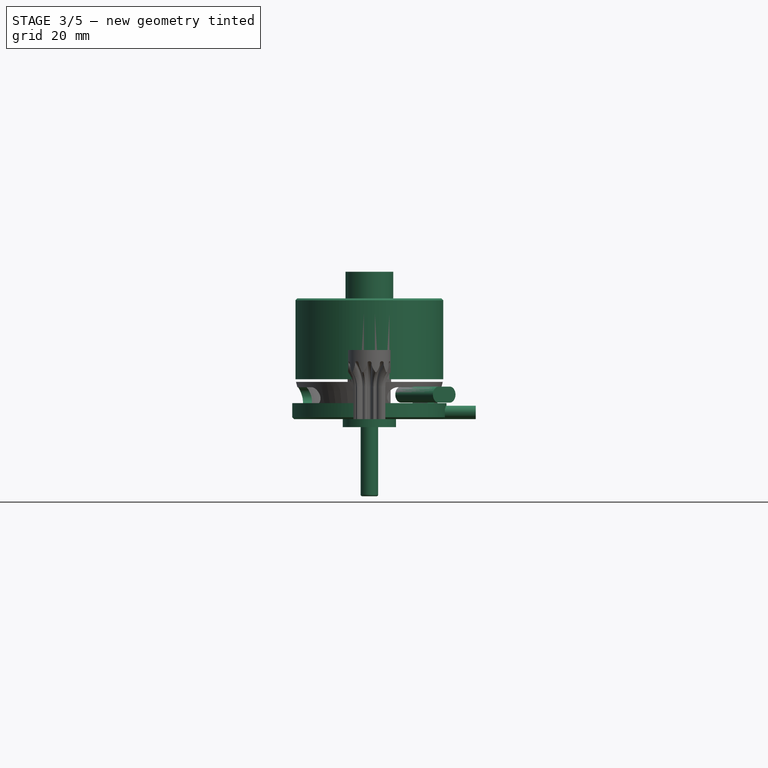
[diagram: stage 3 of 5 — front view after this stage's code; geometry added in this stage tinted green]
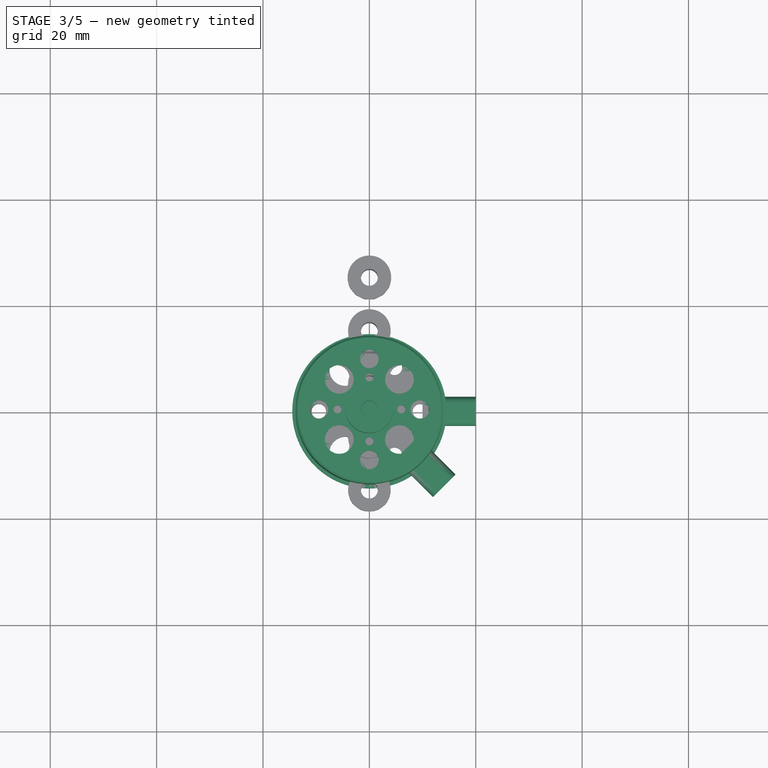
[diagram: stage 3 of 5 — top view after this stage's code; geometry added in this stage tinted green]
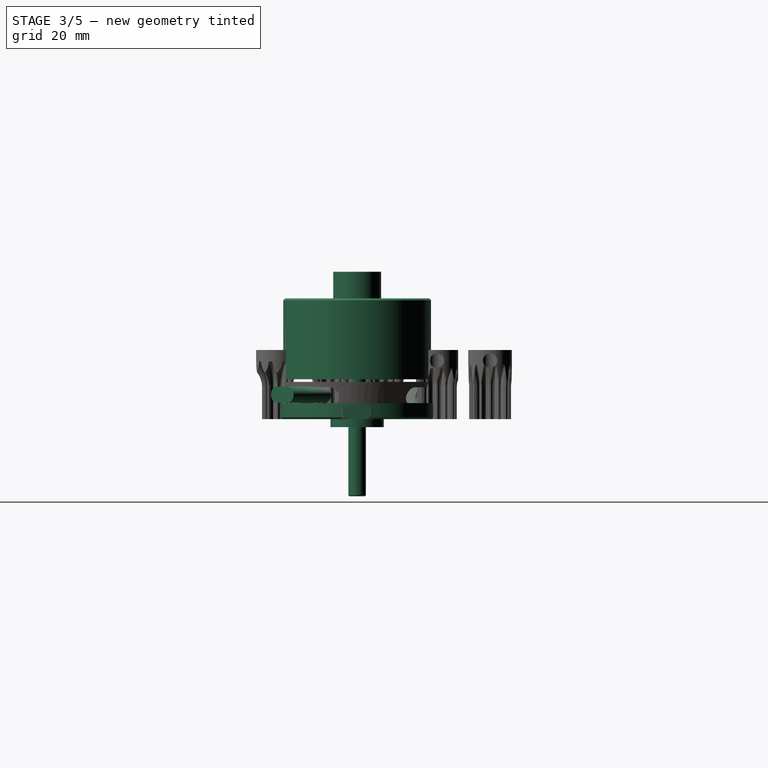
[diagram: stage 3 of 5 — right view after this stage's code; geometry added in this stage tinted green]
FEATURE [PartDesign::Body] Body003  label="Dymond AL 2836"
  Group = -> [Sketch011,Revolution002,Sketch012,Pocket005,PolarPattern005,Sketch013,Sketch017,Pocket007,Pad005,Revolution003,Sketch014,Sketch015,Revolution004,Sketch016,Pocket006,PolarPattern006]
  Origin = -> Origin003
  Placement = pos=(-50,0,0) rot=(0,0,1;0rad)
  Tip = -> Pad005
FEATURE [Sketcher::SketchObject] Sketch018
  FullyConstrained = true
  MapMode = 5
  Placement = pos=(0,0,0) rot=(1,0,0;1.5708rad)
  Support = -> [XZ_Plane004]
  sketch-geometry (11):
    g0: LineSegment StartX=0 StartY=0 StartZ=0 EndX=0 EndY=1.5 EndZ=0
    g1: LineSegment StartX=0 StartY=1.5 StartZ=0 EndX=13 EndY=1.5 EndZ=0
    g2: LineSegment StartX=13 StartY=1.5 StartZ=0 EndX=13 EndY=3 EndZ=0
    g3: LineSegment StartX=13 StartY=3 StartZ=0 EndX=14.5 EndY=3 EndZ=0
    g4: LineSegment StartX=14.5 StartY=3 StartZ=0 EndX=14.5 EndY=0.353553 EndZ=0
    g5: LineSegment StartX=14.5 StartY=0.353553 StartZ=0 EndX=14.1464 EndY=0 EndZ=0
    g6: LineSegment StartX=14.1464 StartY=0 StartZ=0 EndX=5 EndY=0 EndZ=0
    g7: LineSegment StartX=3 StartY=0 StartZ=0 EndX=3 EndY=-1.5 EndZ=0
    g8: LineSegment StartX=3 StartY=-1.5 StartZ=0 EndX=5 EndY=-1.5 EndZ=0
    g9: LineSegment StartX=5 StartY=-1.5 StartZ=0 EndX=5 EndY=0 EndZ=0
    g10: LineSegment StartX=3 StartY=0 StartZ=0 EndX=0 EndY=0 EndZ=0
  constraints (32):
    c: Coincident(g-1,g0)
    c: PointOnObject(g0,g-2)
    c: Coincident(g0,g1)
    c: Horizontal(g1)
    c: Vertical(g2)
    c: Coincident(g2,g3)
    c: Horizontal(g3)
    c: Vertical(g4)
    c: Coincident(g4,g5)
    c: PointOnObject(g5,g-1)
    c: Coincident(g5,g6)
    c: Coincident(g10,g0)
    c: Angle(g5) = -2.35619
    c: Vertical(g7)
    c: Coincident(g7,g8)
    c: Horizontal(g8)
    c: Coincident(g8,g9)
    c: Vertical(g9)
    c: Coincident(g6,g9)
    c: Coincident(g10,g7)
    c: Horizontal(g6)
    c: Horizontal(g6,g7)
    c: DistanceX(g8,g8) = 2
    c: DistanceY(g9,g9) = 1.5
    c: DistanceX(g8) = 5
    c: Coincident(g2,g1)
    c: Equal(g3,g0)
    c: DistanceX(g3,g3) = 1.5
    c: Distance(g5) = 0.5
    c: Coincident(g4,g3)
    c: DistanceY(g3) = 3
    c: DistanceX(g3) = 14.5
FEATURE [PartDesign::Revolution] Revolution005  label="Mount001"
  Angle = 360
  Axis = (0,-2e-16,1)
  Base = (0,0,0)
  Placement = pos=(0,0,0) rot=(1,0,0;1.5708rad)
  Profile = -> Sketch018
  ReferenceAxis = -> Sketch018 [V_Axis]
  Reversed = true
FEATURE [Sketcher::SketchObject] Sketch019
  FullyConstrained = true
  MapMode = 5
  Support = -> [XY_Plane004]
  sketch-geometry (3):
    g0: Circle CenterX=9 CenterY=0 CenterZ=0 NormalX=0 NormalY=0 NormalZ=1 AngleXU=0 Radius=3
    g1: Circle CenterX=4.75 CenterY=8.22724 CenterZ=0 NormalX=0 NormalY=0 NormalZ=1 AngleXU=0 Radius=1.4
    g2: LineSegment StartX=4.75 StartY=8.22724 StartZ=0 EndX=0 EndY=0 EndZ=0
  constraints (8):
    c: PointOnObject(g0,g-1)
    c: Diameter(g0) = 6
    c: DistanceX(g0) = 9
    c: Diameter(g1) = 2.8
    c: Coincident(g2,g1)
    c: Coincident(g2,g-1)
    c: Distance(g2) = 9.5
    c: Angle(g2) = -2.0944
FEATURE [PartDesign::Pocket] Pocket008
  BaseFeature = -> Revolution005
  Direction = (0,0,-1)
  Length = 3
  Length2 = 5
  Placement = pos=(0,0,0) rot=(1,0,0;1.5708rad)
  Profile = -> Sketch019
  ReferenceAxis = -> Sketch019 [N_Axis]
  Reversed = true
  Type = 0
FEATURE [PartDesign::PolarPattern] PolarPattern007
  Angle = 360
  Axis = -> Sketch019 [N_Axis]
  BaseFeature = -> Pocket008
  Occurrences = 3
  Originals = -> [Pocket008]
  Overlap = 0
  Placement = pos=(0,0,0) rot=(1,0,0;1.5708rad)
FEATURE [Sketcher::SketchObject] Sketch020
  FullyConstrained = false
  MapMode = 5
  Placement = pos=(0,0,0) rot=(1,0,0;1.5708rad)
  Support = -> [XZ_Plane004]
  sketch-geometry (8):
    g0: LineSegment StartX=-1.34855 StartY=26 StartZ=0 EndX=0 EndY=26 EndZ=0
    g1: LineSegment StartX=0 StartY=-14.5 StartZ=0 EndX=-1.3496 EndY=-14.5 EndZ=0
    g2: LineSegment StartX=0 StartY=-14.5 StartZ=0 EndX=0 EndY=26 EndZ=0
    g3: LineSegment StartX=-1.64855 StartY=-14.1749 StartZ=0 EndX=-1.64855 EndY=25.7 EndZ=0
    g4: ArcOfCircle CenterX=-1.34855 CenterY=25.7 CenterZ=0 NormalX=0 NormalY=0 NormalZ=1 AngleXU=0 Radius=0.3 StartAngle=1.5708 EndAngle=3.14159
    g5: GeomPoint X=-1.64855 Y=26 Z=0
    g6: ArcOfCircle CenterX=-1.3496 CenterY=-14.2 CenterZ=0 NormalX=0 NormalY=0 NormalZ=1 AngleXU=0 Radius=0.3 StartAngle=3.05769 EndAngle=4.71239
    g7: GeomPoint X=-1.575 Y=-14.5 Z=0
  constraints (19):
    c: Horizontal(g0)
    c: DistanceX(g7,g1) = 1.575
    c: DistanceY(g7) = -14.5
    c: DistanceY(g1,g0) = 40.5
    c: Horizontal(g1)
    c: PointOnObject(g1,g-2)
    c: Coincident(g2,g1)
    c: Coincident(g2,g0)
    c: Vertical(g2)
    c: Vertical(g3)
    c: PointOnObject(g5,g0)
    c: PointOnObject(g5,g3)
    c: Tangent(g0,g4) = 1.5708
    c: Tangent(g3,g4) = 1.5708
    c: Radius(g4) = 0.3
    c: PointOnObject(g7,g1)
    c: Tangent(g1,g6) = 1.5708
    c: Equal(g6,g4)
    c: Coincident(g3,g6)
FEATURE [Sketcher::SketchObject] Sketch021
  AttachmentOffset = pos=(0,0,10) rot=(0,0,1;0rad)
  FullyConstrained = true
  MapMode = 5
  Placement = pos=(10,-2.2e-15,2.2e-15) rot=(0.57735,0.57735,0.57735;2.0944rad)
  Support = -> [YZ_Plane004]
  sketch-geometry (4):
    g0: ArcOfCircle CenterX=-1.5 CenterY=1.25 CenterZ=0 NormalX=0 NormalY=0 NormalZ=1 AngleXU=0 Radius=1.25 StartAngle=1.5708 EndAngle=4.71239
    g1: ArcOfCircle CenterX=1.5 CenterY=1.25 CenterZ=0 NormalX=0 NormalY=0 NormalZ=1 AngleXU=0 Radius=1.25 StartAngle=4.71239 EndAngle=7.85398
    g2: LineSegment StartX=-1.5 StartY=0 StartZ=0 EndX=1.5 EndY=0 EndZ=0
    g3: LineSegment StartX=1.5 StartY=2.5 StartZ=0 EndX=-1.5 EndY=2.5 EndZ=0
  constraints (9):
    c: Tangent(g0,g2) = -1.5708
    c: Tangent(g2,g1) = -1.5708
    c: Tangent(g1,g3) = -1.5708
    c: Tangent(g3,g0) = -1.5708
    c: Equal(g0,g1)
    c: PointOnObject(g1,g-1)
    c: Symmetric(g1,g0,g-2)
    c: Diameter(g1) = 2.5
    c: DistanceX(g3,g3) = 3
FEATURE [Sketcher::SketchObject] Sketch022
  FullyConstrained = true
  MapMode = 5
  Placement = pos=(0,0,0) rot=(1,0,0;1.5708rad)
  Support = -> [XZ_Plane004]
  sketch-geometry (13):
    g0: LineSegment StartX=1.575 StartY=26 StartZ=0 EndX=3 EndY=26 EndZ=0
    g1: LineSegment StartX=3 StartY=26 StartZ=0 EndX=3 EndY=23 EndZ=0
    g2: LineSegment StartX=3 StartY=23 StartZ=0 EndX=13.7929 EndY=23 EndZ=0
    g3: LineSegment StartX=13.7929 StartY=23 StartZ=0 EndX=14.5 EndY=22.2929 EndZ=0
    g4: LineSegment StartX=14.5 StartY=22.2929 StartZ=0 EndX=14.5 EndY=20.8929 EndZ=0
    g5: LineSegment StartX=14.5 StartY=20.8929 StartZ=0 EndX=14.3 EndY=20.8929 EndZ=0
    g6: LineSegment StartX=14.3 StartY=20.8929 StartZ=0 EndX=14.3 EndY=20.6929 EndZ=0
    g7: LineSegment StartX=14.3 StartY=20.6929 StartZ=0 EndX=14.5 EndY=20.6929 EndZ=0
    g8: LineSegment StartX=14.5 StartY=20.6929 StartZ=0 EndX=14.5 EndY=3.5 EndZ=0
    g9: LineSegment StartX=14.5 StartY=3.5 StartZ=0 EndX=13 EndY=3.5 EndZ=0
    g10: LineSegment StartX=13 StartY=3.5 StartZ=0 EndX=13 EndY=21.5 EndZ=0
    g11: LineSegment StartX=13 StartY=21.5 StartZ=0 EndX=1.575 EndY=21.5 EndZ=0
    g12: LineSegment StartX=1.575 StartY=21.5 StartZ=0 EndX=1.575 EndY=26 EndZ=0
  constraints (39):
    c: Horizontal(g0)
    c: Coincident(g0,g1)
    c: Coincident(g1,g2)
    c: Horizontal(g2)
    c: Coincident(g2,g3)
    c: Coincident(g3,g4)
    c: Coincident(g4,g5)
    c: Coincident(g5,g6)
    c: Coincident(g6,g7)
    c: Coincident(g7,g8)
    c: Vertical(g8)
    c: Coincident(g8,g9)
    c: Coincident(g9,g10)
    c: Vertical(g10)
    c: Coincident(g11,g12)
    c: Coincident(g12,g0)
    c: Vertical(g12)
    c: Horizontal(g11)
    c: Horizontal(g9)
    c: DistanceX(g9,g9) = 1.5
    c: Vertical(g4,g7)
    c: Vertical(g4)
    c: Vertical(g1)
    c: Horizontal(g5)
    c: Vertical(g6)
    c: Horizontal(g7)
    c: DistanceX(g7,g7) = 0.2
    c: Equal(g6,g7)
    c: DistanceY(g4,g4) = 1.4
    c: DistanceX(g0) = 3
    c: DistanceY(g1,g1) = 3
    c: DistanceY(g12,g12) = 4.5
    c: DistanceX(g0) = 1.575
    c: DistanceX(g8) = 14.5
    c: DistanceY(g8) = 3.5
    c: Coincident(g10,g11)
    c: Distance(g3) = 1
    c: Angle(g3) = -0.785398
    c: DistanceY(g0) = 26
FEATURE [Sketcher::SketchObject] Sketch023
  AttachmentOffset = pos=(0,0,10) rot=(0,0,1;0rad)
  FullyConstrained = true
  MapMode = 5
  Placement = pos=(0,0,10) rot=(0,0,1;0rad)
  Support = -> [XY_Plane004]
  sketch-geometry (1):
    g0: Circle CenterX=9 CenterY=0 CenterZ=0 NormalX=0 NormalY=0 NormalZ=1 AngleXU=0 Radius=3
  constraints (3):
    c: PointOnObject(g0,g-1)
    c: Diameter(g0) = 6
    c: DistanceX(g0) = 9
FEATURE [Sketcher::SketchObject] Sketch024
  FullyConstrained = false
  MapMode = 5
  Support = -> [XY_Plane004]
  sketch-geometry (4):
    g0: LineSegment StartX=9 StartY=3 StartZ=0 EndX=17.769 EndY=3 EndZ=0
    g1: LineSegment StartX=17.769 StartY=3 StartZ=0 EndX=17.769 EndY=-3 EndZ=0
    g2: LineSegment StartX=17.769 StartY=-3 StartZ=0 EndX=9 EndY=-3 EndZ=0
    g3: LineSegment StartX=9 StartY=-3 StartZ=0 EndX=9 EndY=3 EndZ=0
  constraints (10):
    c: Coincident(g0,g1)
    c: Coincident(g1,g2)
    c: Coincident(g2,g3)
    c: Coincident(g3,g0)
    c: Horizontal(g0)
    c: Horizontal(g2)
    c: Vertical(g1)
    c: Symmetric(g2,g0,g-1)
    c: DistanceY(g1,g1) = 6
    c: DistanceX(g2) = 9
FEATURE [PartDesign::Pocket] Pocket010  label="Cable Outlet"
  BaseFeature = -> PolarPattern007
  Direction = (0,0,-1)
  Length = 2
  Length2 = 5
  Placement = pos=(0,0,0) rot=(1,0,0;1.5708rad)
  Profile = -> Sketch024
  ReferenceAxis = -> Sketch024 [N_Axis]
  Reversed = true
  Type = 0
FEATURE [PartDesign::Pad] Pad006  label="Cables001"
  BaseFeature = -> Pocket010
  Direction = (1,-2e-16,3e-16)
  Length = 10
  Length2 = 10
  Placement = pos=(0,0,0) rot=(1,0,0;1.5708rad)
  Profile = -> Sketch021
  ReferenceAxis = -> Sketch021 [N_Axis]
  Type = 0
FEATURE [PartDesign::Revolution] Revolution006  label="Shaft001"
  Angle = 360
  Axis = (0,-2e-16,1)
  Base = (0,0,0)
  BaseFeature = -> Pad006
  Placement = pos=(0,0,0) rot=(1,0,0;1.5708rad)
  Profile = -> Sketch020
  ReferenceAxis = -> Sketch020 [V_Axis]
FEATURE [Sketcher::SketchObject] Sketch026
  FullyConstrained = true
  MapMode = 5
  Support = -> [XY_Plane005]
  sketch-geometry (5):
    g0: Circle CenterX=9.5 CenterY=0 CenterZ=0 NormalX=0 NormalY=0 NormalZ=1 AngleXU=0 Radius=1.35
    g1: Circle CenterX=6.22254 CenterY=6.22254 CenterZ=0 NormalX=0 NormalY=0 NormalZ=1 AngleXU=0 Radius=2.5
    g2: LineSegment StartX=6.22254 StartY=6.22254 StartZ=0 EndX=0 EndY=0 EndZ=0
    g3: Circle CenterX=0 CenterY=8 CenterZ=0 NormalX=0 NormalY=0 NormalZ=1 AngleXU=0 Radius=1.35
    g4: Circle CenterX=-6.22254 CenterY=6.22254 CenterZ=0 NormalX=0 NormalY=0 NormalZ=1 AngleXU=0 Radius=2.5
  constraints (13):
    c: PointOnObject(g0,g-1)
    c: Diameter(g0) = 2.7
    c: DistanceX(g0) = 9.5
    c: Diameter(g1) = 5
    c: Coincident(g2,g1)
    c: Coincident(g2,g-1)
    c: Angle(g2) = -2.35619
    c: PointOnObject(g3,g-2)
    c: Equal(g3,g0)
    c: DistanceY(g3) = 8
    c: Distance(g2) = 8.8
    c: Symmetric(g4,g1,g-2)
    c: Equal(g4,g1)
FEATURE [PartDesign::Pocket] Pocket011  label="Holes"
  BaseFeature = -> Revolution008
  Direction = (0,0,-1)
  Length = 3
  Length2 = 5
  Placement = pos=(0,0,0) rot=(1,0,0;1.5708rad)
  Profile = -> Sketch026
  ReferenceAxis = -> Sketch026 [N_Axis]
  Reversed = true
  Type = 0
FEATURE [PartDesign::PolarPattern] PolarPattern009
  Angle = 360
  Axis = -> Sketch026 [N_Axis]
  BaseFeature = -> Pocket011
  Occurrences = 2
  Originals = -> [Pocket011]
  Overlap = 0
  Placement = pos=(0,0,0) rot=(1,0,0;1.5708rad)
FEATURE [Sketcher::SketchObject] Sketch027
  FullyConstrained = false
  MapMode = 5
  Placement = pos=(0,0,0) rot=(1,0,0;1.5708rad)
  Support = -> [XZ_Plane005]
  sketch-geometry (12):
    g0: LineSegment StartX=-1.35098 StartY=27.7 StartZ=0 EndX=0 EndY=27.7 EndZ=0
    g1: LineSegment StartX=0 StartY=-12.3 StartZ=0 EndX=-1.34716 EndY=-12.3 EndZ=0
    g2: LineSegment StartX=0 StartY=-12.3 StartZ=0 EndX=0 EndY=27.7 EndZ=0
    g3: LineSegment StartX=-1.64612 StartY=-11.9751 StartZ=0 EndX=-1.64612 EndY=-1.2 EndZ=0
    g4: ArcOfCircle CenterX=-1.35098 CenterY=27.4 CenterZ=0 NormalX=0 NormalY=0 NormalZ=1 AngleXU=0 Radius=0.3 StartAngle=1.5708 EndAngle=3.14159
    g5: GeomPoint X=-1.64612 Y=27.7 Z=0
    g6: ArcOfCircle CenterX=-1.34716 CenterY=-12 CenterZ=0 NormalX=0 NormalY=0 NormalZ=1 AngleXU=0 Radius=0.3 StartAngle=3.0584 EndAngle=4.71239
    g7: GeomPoint X=-1.575 Y=-12.3 Z=0
    g8: LineSegment StartX=-1.64612 StartY=-1.2 StartZ=0 EndX=-3.5 EndY=-1.2 EndZ=0
    g9: LineSegment StartX=-3.5 StartY=-1.2 StartZ=0 EndX=-3.5 EndY=-0.7 EndZ=0
    g10: LineSegment StartX=-3.5 StartY=-0.7 StartZ=0 EndX=-1.64612 EndY=-0.7 EndZ=0
    g11: LineSegment StartX=-1.64612 StartY=-0.7 StartZ=0 EndX=-1.65098 EndY=27.4 EndZ=0
  constraints (30):
    c: Horizontal(g0)
    c: DistanceX(g7,g1) = 1.575
    c: DistanceY(g7) = -12.3
    c: DistanceY(g1,g0) = 40
    c: Horizontal(g1)
    c: PointOnObject(g1,g-2)
    c: Coincident(g2,g1)
    c: Coincident(g2,g0)
    c: Vertical(g2)
    c: Vertical(g3)
    c: PointOnObject(g5,g0)
    c: PointOnObject(g5,g3)
    c: Tangent(g0,g4) = 1.5708
    c: Coincident(g11,g4) = 1.5708
    c: Radius(g4) = 0.3
    c: PointOnObject(g7,g1)
    c: Tangent(g1,g6) = 1.5708
    c: Equal(g6,g4)
    c: Coincident(g3,g6)
    c: Horizontal(g8)
    c: Coincident(g8,g9)
    c: Vertical(g9)
    c: Coincident(g9,g10)
    c: Horizontal(g10)
    c: Coincident(g3,g8)
    c: Coincident(g11,g10)
    c: Vertical(g10,g3)
    c: DistanceY(g9,g9) = 0.5
    c: DistanceY(g8) = -1.2
    c: DistanceX(g8) = -3.5
FEATURE [Sketcher::SketchObject] Sketch028
  AttachmentOffset = pos=(-7,3.1,7) rot=(0,-1,0;0.785398rad)
  FullyConstrained = true
  MapMode = 5
  Placement = pos=(7,-7,3.1) rot=(0.862856,0.357407,0.357407;1.71777rad)
  Support = -> [YZ_Plane005]
  sketch-geometry (4):
    g0: ArcOfCircle CenterX=-1.5 CenterY=1.5 CenterZ=0 NormalX=0 NormalY=0 NormalZ=1 AngleXU=0 Radius=1.5 StartAngle=1.5708 EndAngle=4.71239
    g1: ArcOfCircle CenterX=1.5 CenterY=1.5 CenterZ=0 NormalX=0 NormalY=0 NormalZ=1 AngleXU=0 Radius=1.5 StartAngle=4.71239 EndAngle=7.85398
    g2: LineSegment StartX=-1.5 StartY=0 StartZ=0 EndX=1.5 EndY=0 EndZ=0
    g3: LineSegment StartX=1.5 StartY=3 StartZ=0 EndX=-1.5 EndY=3 EndZ=0
  constraints (9):
    c: Tangent(g0,g2) = -1.5708
    c: Tangent(g2,g1) = -1.5708
    c: Tangent(g1,g3) = -1.5708
    c: Tangent(g3,g0) = -1.5708
    c: Equal(g0,g1)
    c: PointOnObject(g1,g-1)
    c: Symmetric(g1,g0,g-2)
    c: Diameter(g1) = 3
    c: DistanceX(g3,g3) = 3
FEATURE [Sketcher::SketchObject] Sketch029
  FullyConstrained = true
  MapMode = 5
  Placement = pos=(0,0,0) rot=(1,0,0;1.5708rad)
  Support = -> [XZ_Plane005]
  sketch-geometry (13):
    g0: LineSegment StartX=1.575 StartY=27.7 StartZ=0 EndX=4.5 EndY=27.7 EndZ=0
    g1: LineSegment StartX=4.5 StartY=27.7 StartZ=0 EndX=4.5 EndY=22.7 EndZ=0
    g2: LineSegment StartX=4.5 StartY=22.7 StartZ=0 EndX=13.5464 EndY=22.7 EndZ=0
    g3: LineSegment StartX=13.5464 StartY=22.7 StartZ=0 EndX=13.9 EndY=22.3464 EndZ=0
    g4: LineSegment StartX=13.9 StartY=22.3464 StartZ=0 EndX=13.9 EndY=19.7 EndZ=0
    g5: LineSegment StartX=13.9 StartY=19.7 StartZ=0 EndX=13.8 EndY=19.7 EndZ=0
    g6: LineSegment StartX=13.8 StartY=19.7 StartZ=0 EndX=13.8 EndY=19.8 EndZ=0
    g7: LineSegment StartX=13.8 StartY=19.8 StartZ=0 EndX=13.9 EndY=19.8 EndZ=0
    g8: LineSegment StartX=13.9 StartY=19.8 StartZ=0 EndX=13.9 EndY=7.5 EndZ=0
    g9: LineSegment StartX=13.9 StartY=7.5 StartZ=0 EndX=12.4 EndY=7.5 EndZ=0
    g10: LineSegment StartX=12.4 StartY=7.5 StartZ=0 EndX=12.4 EndY=21.2 EndZ=0
    g11: LineSegment StartX=12.4 StartY=21.2 StartZ=0 EndX=1.575 EndY=21.2 EndZ=0
    g12: LineSegment StartX=1.575 StartY=21.2 StartZ=0 EndX=1.575 EndY=27.7 EndZ=0
  constraints (39):
    c: Horizontal(g0)
    c: Coincident(g0,g1)
    c: Coincident(g1,g2)
    c: Horizontal(g2)
    c: Coincident(g2,g3)
    c: Coincident(g3,g4)
    c: Coincident(g4,g5)
    c: Coincident(g5,g6)
    c: Coincident(g6,g7)
    c: Coincident(g7,g8)
    c: Vertical(g8)
    c: Coincident(g8,g9)
    c: Coincident(g9,g10)
    c: Vertical(g10)
    c: Coincident(g11,g12)
    c: Coincident(g12,g0)
    c: Vertical(g12)
    c: Horizontal(g11)
    c: Horizontal(g9)
    c: DistanceX(g9,g9) = 1.5
    c: Vertical(g4,g7)
    c: Vertical(g4)
    c: Vertical(g1)
    c: Horizontal(g5)
    c: Vertical(g6)
    c: Horizontal(g7)
    c: DistanceX(g7,g7) = 0.1
    c: Equal(g6,g7)
    c: DistanceX(g0) = 4.5
    c: DistanceY(g1,g1) = 5
    c: DistanceY(g12,g12) = 6.5
    c: DistanceX(g0) = 1.575
    c: DistanceX(g8) = 13.9
    c: DistanceY(g8) = 7.5
    c: Coincident(g10,g11)
    c: Distance(g3) = 0.5
    c: Angle(g3) = -0.785398
    c: DistanceY(g0) = 27.7
    c: DistanceY(g5,g2) = 3
FEATURE [Sketcher::SketchObject] Sketch030
  AttachmentOffset = pos=(0,0,10) rot=(0,0,1;0rad)
  FullyConstrained = true
  MapMode = 5
  Placement = pos=(0,0,10) rot=(0,0,1;0rad)
  Support = -> [XY_Plane005]
  sketch-geometry (4):
    g0: Circle CenterX=9.5 CenterY=0 CenterZ=0 NormalX=0 NormalY=0 NormalZ=1 AngleXU=0 Radius=1.75
    g1: Circle CenterX=6 CenterY=0 CenterZ=0 NormalX=0 NormalY=0 NormalZ=1 AngleXU=0 Radius=0.75
    g2: Circle CenterX=5.65685 CenterY=5.65685 CenterZ=0 NormalX=0 NormalY=0 NormalZ=1 AngleXU=0 Radius=2.7
    g3: LineSegment StartX=5.65685 StartY=5.65685 StartZ=0 EndX=0 EndY=0 EndZ=0
  constraints (11):
    c: PointOnObject(g0,g-1)
    c: Diameter(g0) = 3.5
    c: DistanceX(g0) = 9.5
    c: PointOnObject(g1,g-1)
    c: Diameter(g1) = 1.5
    c: Diameter(g2) = 5.4
    c: Coincident(g3,g2)
    c: Coincident(g3,g-1)
    c: Angle(g3) = -2.35619
    c: Distance(g3) = 8
    c: DistanceX(g1) = 6
FEATURE [Sketcher::SketchObject] Sketch032
  AttachmentOffset = pos=(0,0,0) rot=(0,1,0;0.785398rad)
  FullyConstrained = true
  MapMode = 5
  Placement = pos=(0,0,0) rot=(0.862856,0.357407,0.357407;1.71777rad)
  Support = -> [XZ_Plane005]
  sketch-geometry (4):
    g0: ArcOfCircle CenterX=-5 CenterY=4.4 CenterZ=0 NormalX=0 NormalY=0 NormalZ=1 AngleXU=0 Radius=1.6 StartAngle=1.5708 EndAngle=4.71239
    g1: ArcOfCircle CenterX=5 CenterY=4.4 CenterZ=0 NormalX=0 NormalY=0 NormalZ=1 AngleXU=0 Radius=1.6 StartAngle=4.71239 EndAngle=7.85398
    g2: LineSegment StartX=-5 StartY=2.8 StartZ=0 EndX=5 EndY=2.8 EndZ=0
    g3: LineSegment StartX=5 StartY=6 StartZ=0 EndX=-5 EndY=6 EndZ=0
  constraints (9):
    c: Tangent(g0,g2) = -1.5708
    c: Tangent(g2,g1) = -1.5708
    c: Tangent(g1,g3) = -1.5708
    c: Tangent(g3,g0) = -1.5708
    c: Equal(g0,g1)
    c: DistanceY(g1) = 2.8
    c: Diameter(g1) = 3.2
    c: DistanceX(g3,g3) = 10
    c: Symmetric(g0,g1,g-2)
FEATURE [PartDesign::Pocket] Pocket014  label="Mount Cut Out"
  BaseFeature = -> PolarPattern009
  Direction = (-0.707107,0.707107,1e-16)
  Length = 5
  Length2 = 5
  Placement = pos=(0,0,0) rot=(1,0,0;1.5708rad)
  Profile = -> Sketch032
  ReferenceAxis = -> Sketch032 [N_Axis]
  Reversed = true
  Type = 1
FEATURE [PartDesign::PolarPattern] PolarPattern011
  Angle = 360
  Axis = -> Z_Axis005
  BaseFeature = -> Pocket014
  Occurrences = 3
  Originals = -> [Pocket014]
  Overlap = 0
  Placement = pos=(0,0,0) rot=(1,0,0;1.5708rad)
FEATURE [PartDesign::Pad] Pad007  label="Cables002"
  BaseFeature = -> PolarPattern011
  Direction = (0.707107,-0.707107,3e-16)
  Length = 10
  Length2 = 10
  Placement = pos=(0,0,0) rot=(1,0,0;1.5708rad)
  Profile = -> Sketch028
  ReferenceAxis = -> Sketch028 [N_Axis]
  Type = 0
FEATURE [PartDesign::Revolution] Revolution009  label="Shaft002"
  Angle = 360
  Axis = (0,-2e-16,1)
  Base = (0,0,0)
  BaseFeature = -> Pad007
  Placement = pos=(0,0,0) rot=(1,0,0;1.5708rad)
  Profile = -> Sketch027
  ReferenceAxis = -> Sketch027 [V_Axis]
FEATURE [PartDesign::Revolution] Revolution010  label="Bell002"
  Angle = 360
  Axis = (0,-2e-16,1)
  Base = (0,0,0)
  BaseFeature = -> Revolution009
  Placement = pos=(0,0,0) rot=(1,0,0;1.5708rad)
  Profile = -> Sketch029
  ReferenceAxis = -> Sketch029 [V_Axis]
  Reversed = true
FEATURE [PartDesign::Pocket] Pocket012  label="Bell Cut Out002"
  BaseFeature = -> Revolution010
  Direction = (0,0,-1)
  Length = 5
  Length2 = 5
  Placement = pos=(0,0,0) rot=(1,0,0;1.5708rad)
  Profile = -> Sketch030
  ReferenceAxis = -> Sketch030 [N_Axis]
  Reversed = true
  Type = 1
FEATURE [PartDesign::PolarPattern] PolarPattern010
  Angle = 360
  Axis = -> Sketch030 [N_Axis]
  BaseFeature = -> Pocket012
  Occurrences = 4
  Originals = -> [Pocket012]
  Overlap = 0
  Placement = pos=(0,0,0) rot=(1,0,0;1.5708rad)
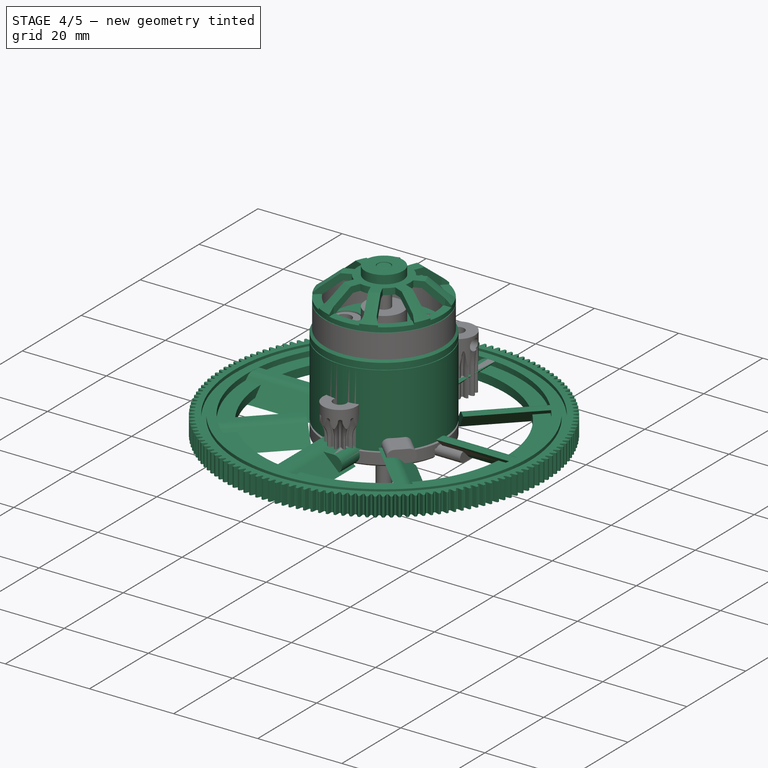
[diagram: stage 4 of 5 — iso view after this stage's code; geometry added in this stage tinted green]
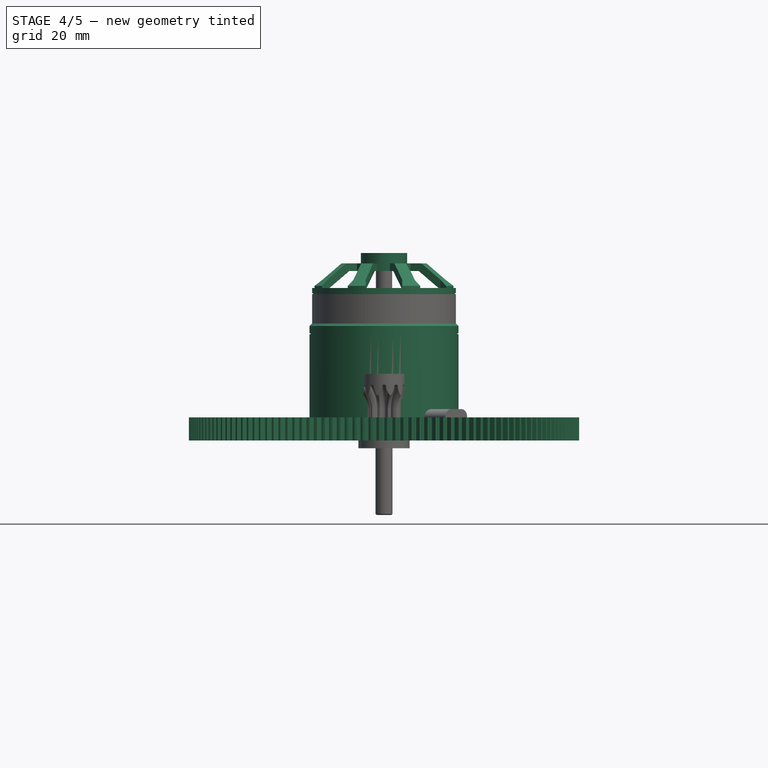
[diagram: stage 4 of 5 — front view after this stage's code; geometry added in this stage tinted green]
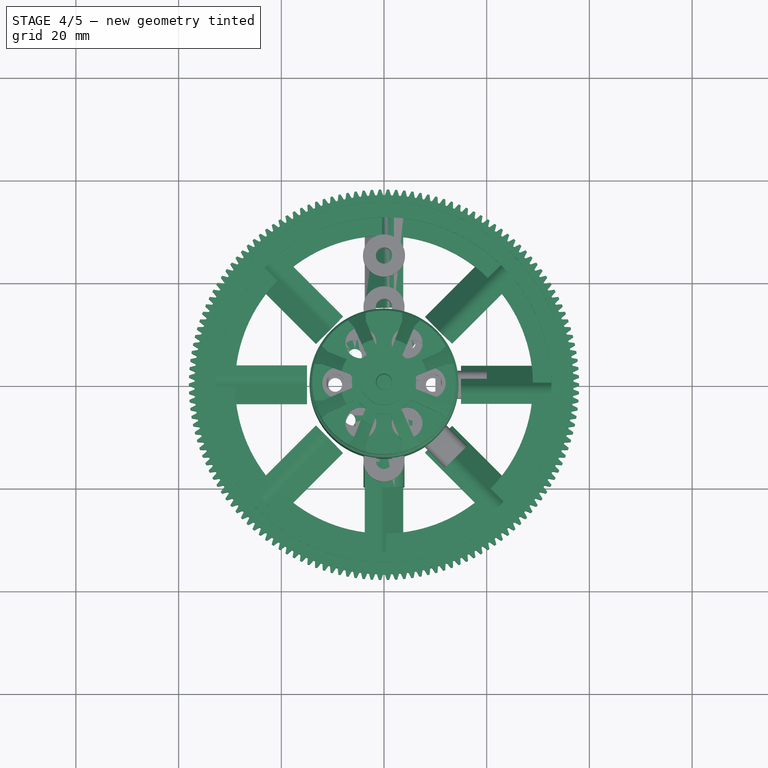
[diagram: stage 4 of 5 — top view after this stage's code; geometry added in this stage tinted green]
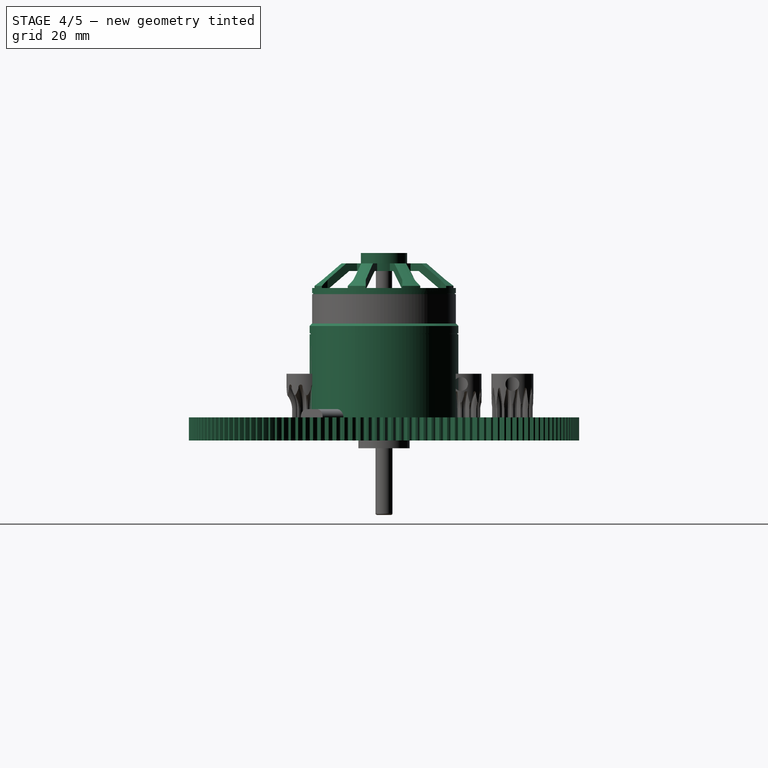
[diagram: stage 4 of 5 — right view after this stage's code; geometry added in this stage tinted green]
FEATURE [PartDesign::Body] Body001  label="Delrin 180Z M0.5 "
  Group = -> [InvoluteGear001,Pad001,Sketch003,Groove,Sketch004,Pad002,PolarPattern,Sketch005,Pocket002,PolarPattern001,Sketch006,Pocket003,PolarPattern002]
  Origin = -> Origin001
  Placement = pos=(0,80.5,0) rot=(0,0,1;0rad)
  Tip = -> PolarPattern002
FEATURE [Part::Part2DObjectPython] InvoluteGear002  # Draft 2D object (typed FeaturePython)
  ExternalGear = true
  HighPrecision = false
  Modules = 0.5
  NumberOfTeeth = 150
  PressureAngle = 20
FEATURE [PartDesign::Pad] Pad003
  Direction = (0,0,1)
  Length = 4.5
  Length2 = 10
  Profile = -> InvoluteGear002
  ReferenceAxis = -> InvoluteGear002 [N_Axis]
  Type = 0
FEATURE [Sketcher::SketchObject] Sketch007
  FullyConstrained = true
  MapMode = 5
  Placement = pos=(0,0,0) rot=(1,0,0;1.5708rad)
  Support = -> [XZ_Plane002]
  sketch-geometry (17):
    g0: LineSegment StartX=0 StartY=-2.85 StartZ=0 EndX=-35.6 EndY=-2.85 EndZ=0
    g1: LineSegment StartX=-35.6 StartY=-2.85 StartZ=0 EndX=-35.6 EndY=0.75 EndZ=0
    g2: LineSegment StartX=-35.6 StartY=0.75 StartZ=0 EndX=-34.6 EndY=0.75 EndZ=0
    g3: LineSegment StartX=-34.6 StartY=0.75 StartZ=0 EndX=-34.6 EndY=-2.35 EndZ=0
    g4: LineSegment StartX=-34.6 StartY=-2.35 StartZ=0 EndX=-32.6 EndY=-2.35 EndZ=0
    g5: LineSegment StartX=-32.6 StartY=-2.35 StartZ=0 EndX=-32.6 EndY=1.25 EndZ=0
    g6: LineSegment StartX=-32.6 StartY=1.25 StartZ=0 EndX=-29 EndY=1.25 EndZ=0
    g7: LineSegment StartX=-29 StartY=1.25 StartZ=0 EndX=-29 EndY=3.25 EndZ=0
    g8: LineSegment StartX=-29 StartY=3.25 StartZ=0 EndX=-32.6 EndY=3.25 EndZ=0
    g9: LineSegment StartX=-32.6 StartY=3.25 StartZ=0 EndX=-32.6 EndY=6.85 EndZ=0
    g10: LineSegment StartX=-32.6 StartY=6.85 StartZ=0 EndX=-34.6 EndY=6.85 EndZ=0
    g11: LineSegment StartX=-34.6 StartY=6.85 StartZ=0 EndX=-34.6 EndY=3.75 EndZ=0
    g12: LineSegment StartX=-34.6 StartY=3.75 StartZ=0 EndX=-35.6 EndY=3.75 EndZ=0
    g13: LineSegment StartX=-35.6 StartY=3.75 StartZ=0 EndX=-35.6 EndY=7.35 EndZ=0
    g14: LineSegment StartX=-35.6 StartY=7.35 StartZ=0 EndX=0 EndY=7.35 EndZ=0
    g15: LineSegment StartX=0 StartY=7.35 StartZ=0 EndX=0 EndY=-2.85 EndZ=0
    g16: LineSegment StartX=-35.6 StartY=2.25 StartZ=0 EndX=-29 EndY=2.25 EndZ=0
  constraints (48):
    c: PointOnObject(g0,g-2)
    c: Horizontal(g0)
    c: Coincident(g0,g1)
    c: Vertical(g1)
    c: Coincident(g1,g2)
    c: Horizontal(g2)
    c: Coincident(g2,g3)
    c: Coincident(g3,g4)
    c: Coincident(g4,g5)
    c: Coincident(g5,g6)
    c: Horizontal(g6)
    c: Coincident(g6,g7)
    c: Vertical(g7)
    c: Coincident(g7,g8)
    c: Coincident(g8,g9)
    c: Coincident(g9,g10)
    c: Horizontal(g10)
    c: Coincident(g10,g11)
    c: Vertical(g11)
    c: Coincident(g11,g12)
    c: Coincident(g12,g13)
    c: Coincident(g13,g14)
    c: PointOnObject(g14,g-2)
    c: Horizontal(g14)
    c: Coincident(g14,g15)
    c: Coincident(g15,g0)
    c: Vertical(g13)
    c: Vertical(g9)
    c: Vertical(g5)
    c: Vertical(g3)
    c: Horizontal(g4)
    c: Horizontal(g8)
    c: Horizontal(g12)
    c: PointOnObject(g16,g7)
    c: Vertical(g16,g1)
    c: DistanceY(g16) = 2.25
    c: Symmetric(g6,g7,g16)
    c: Symmetric(g4,g9,g16)
    c: Symmetric(g11,g2,g16)
    c: DistanceX(g12,g12) = 1
    c: DistanceY(g2,g11) = 3
    c: DistanceY(g7,g7) = 2
    c: DistanceX(g10,g10) = 2
    c: Symmetric(g0,g13,g16)
    c: DistanceX(g13) = -35.6
    c: DistanceX(g7) = -29
    c: Equal(g8,g9)
    c: Equal(g9,g13)
FEATURE [PartDesign::Groove] Groove001  label="Rim"
  Angle = 360
  Axis = (0,-2e-16,1)
  Base = (0,0,0)
  BaseFeature = -> Pad003
  Profile = -> Sketch007
  ReferenceAxis = -> Sketch007 [V_Axis]
  Reversed = true
FEATURE [Sketcher::SketchObject] Sketch008
  AttachmentOffset = pos=(0,0,15) rot=(0,0,1;0rad)
  FullyConstrained = false
  MapMode = 5
  Placement = pos=(0,-15,-3.3e-15) rot=(1,0,0;1.5708rad)
  Support = -> [XZ_Plane002]
  sketch-geometry (8):
    g0: LineSegment StartX=-1.95 StartY=4.48 StartZ=0 EndX=-3.75 EndY=4.48 EndZ=0
    g1: LineSegment StartX=-3.75 StartY=4.48 StartZ=0 EndX=0.0984438 EndY=0.758776 EndZ=0
    g2: LineSegment StartX=1.95 StartY=0.01 StartZ=0 EndX=3.75 EndY=0.01 EndZ=0
    g3: LineSegment StartX=3.75 StartY=0.01 StartZ=0 EndX=-0.0984438 EndY=3.73122 EndZ=0
    g4: GeomPoint X=-3.75 Y=0.01 Z=0
    g5: LineSegment StartX=-0.661369 StartY=1.49347 StartZ=0 EndX=0.72888 EndY=2.93125 EndZ=0
    g6: ArcOfCircle CenterX=-1.95 CenterY=1.81637 CenterZ=0 NormalX=0 NormalY=0 NormalZ=1 AngleXU=0 Radius=2.66363 StartAngle=0.802203 EndAngle=1.5708
    g7: ArcOfCircle CenterX=1.95 CenterY=2.67363 CenterZ=0 NormalX=0 NormalY=0 NormalZ=1 AngleXU=0 Radius=2.66363 StartAngle=3.9438 EndAngle=4.71239
  constraints (20):
    c: Horizontal(g0)
    c: Coincident(g0,g1)
    c: Horizontal(g2)
    c: Coincident(g2,g3)
    c: Equal(g2,g0)
    c: DistanceY(g0) = 4.48
    c: DistanceX(g0,g0) = 1.8
    c: Vertical(g4,g0)
    c: Symmetric(g4,g2,g-2)
    c: DistanceX(g4,g2) = 7.5
    c: DistanceY(g2) = 0.01
    c: Parallel(g1,g3)
    c: PointOnObject(g5,g1)
    c: PointOnObject(g5,g3)
    c: Perpendicular(g3,g5)
    c: Distance(g5) = 2
    c: Tangent(g6,g0) = -1.5708
    c: Tangent(g6,g3) = -1.5708
    c: Tangent(g7,g1) = -1.5708
    c: Tangent(g7,g2) = -1.5708
FEATURE [PartDesign::Pad] Pad004  label="Spoke"
  BaseFeature = -> Groove001
  Direction = (0,-1,-2e-16)
  Length = 19
  Length2 = 10
  Profile = -> Sketch008
  ReferenceAxis = -> Sketch008 [N_Axis]
  Type = 0
FEATURE [PartDesign::PolarPattern] PolarPattern003
  Angle = 360
  Axis = -> Z_Axis002
  BaseFeature = -> Pad004
  Occurrences = 8
  Originals = -> [Pad004]
  Overlap = 0
FEATURE [PartDesign::Body] Body002  label="Delrin M05 150Z"
  Group = -> [InvoluteGear002,Pad003,Sketch007,Groove001,Sketch008,Pad004,PolarPattern003,Sketch009,Revolution001,Sketch010,Pocket004,PolarPattern004]
  Origin = -> Origin002
  Placement = pos=(0,-80,0) rot=(0,0,1;0rad)
  Tip = -> PolarPattern004
FEATURE [Sketcher::SketchObject] Sketch011
  FullyConstrained = true
  MapMode = 5
  Placement = pos=(0,0,0) rot=(1,0,0;1.5708rad)
  Support = -> [XZ_Plane003]
  sketch-geometry (9):
    g0: LineSegment StartX=0 StartY=0 StartZ=0 EndX=0 EndY=1.5 EndZ=0
    g1: LineSegment StartX=0 StartY=1.5 StartZ=0 EndX=11.2519 EndY=1.5 EndZ=0
    g2: LineSegment StartX=11.2519 StartY=1.5 StartZ=0 EndX=12.35 EndY=3.40192 EndZ=0
    g3: LineSegment StartX=12.35 StartY=3.40192 StartZ=0 EndX=12.35 EndY=5 EndZ=0
    g4: LineSegment StartX=12.35 StartY=5 StartZ=0 EndX=13.85 EndY=5 EndZ=0
    g5: LineSegment StartX=13.85 StartY=5 StartZ=0 EndX=13.85 EndY=3 EndZ=0
    g6: LineSegment StartX=13.85 StartY=3 StartZ=0 EndX=12.1179 EndY=0 EndZ=0
    g7: LineSegment StartX=12.1179 StartY=0 StartZ=0 EndX=0 EndY=0 EndZ=0
    g8: LineSegment StartX=11.2519 StartY=1.5 StartZ=0 EndX=12.551 EndY=0.75 EndZ=0
  constraints (26):
    c: Coincident(g-1,g0)
    c: PointOnObject(g0,g-2)
    c: Coincident(g0,g1)
    c: Horizontal(g1)
    c: Coincident(g1,g2)
    c: Coincident(g2,g3)
    c: Vertical(g3)
    c: Coincident(g3,g4)
    c: Horizontal(g4)
    c: Coincident(g4,g5)
    c: Vertical(g5)
    c: Coincident(g5,g6)
    c: PointOnObject(g6,g-1)
    c: Coincident(g6,g7)
    c: Coincident(g7,g0)
    c: Equal(g0,g4)
    c: Parallel(g2,g6)
    c: Coincident(g8,g1)
    c: PointOnObject(g8,g6)
    c: Perpendicular(g2,g8)
    c: Equal(g8,g4)
    c: Angle(g6) = -2.0944
    c: DistanceX(g4) = 13.85
    c: DistanceY(g4) = 5
    c: DistanceX(g4,g4) = 1.5
    c: DistanceY(g5,g5) = 2
FEATURE [PartDesign::Revolution] Revolution002  label="Mount"
  Angle = 360
  Axis = (0,2e-16,1)
  Base = (0,0,0)
  Placement = pos=(0,0,0) rot=(1,0,0;1.5708rad)
  Profile = -> Sketch011
  ReferenceAxis = -> Sketch011 [V_Axis]
  Reversed = true
FEATURE [Sketcher::SketchObject] Sketch012
  FullyConstrained = false
  MapMode = 5
  Support = -> [XY_Plane003]
  sketch-geometry (10):
    g0: LineSegment StartX=5.99834 StartY=-1.7557 StartZ=0 EndX=9.49264 EndY=-5.25 EndZ=0
    g1: LineSegment StartX=17.3656 StartY=-6 StartZ=0 EndX=17.3656 EndY=6 EndZ=0
    g2: LineSegment StartX=9.49264 StartY=5.25 StartZ=0 EndX=5.99834 EndY=1.7557 EndZ=0
    g3: ArcOfCircle CenterX=0 CenterY=0 CenterZ=0 NormalX=0 NormalY=0 NormalZ=1 AngleXU=0 Radius=6.25 StartAngle=5.99844 EndAngle=6.56793
    g4: LineSegment StartX=0 StartY=0 StartZ=0 EndX=7.37132 EndY=7.37132 EndZ=0
    g5: LineSegment StartX=7.37132 StartY=7.37132 StartZ=0 EndX=9.49264 EndY=5.25 EndZ=0
    g6: LineSegment StartX=17.3656 StartY=6 StartZ=0 EndX=11.2611 EndY=6 EndZ=0
    g7: LineSegment StartX=11.2611 StartY=6 StartZ=0 EndX=9.49264 EndY=5.25 EndZ=0
    g8: LineSegment StartX=9.49264 StartY=-5.25 StartZ=0 EndX=11.2611 EndY=-6 EndZ=0
    g9: LineSegment StartX=11.2611 StartY=-6 StartZ=0 EndX=17.3656 EndY=-6 EndZ=0
  constraints (25):
    c: Coincident(g0,g8)
    c: Coincident(g9,g1)
    c: Coincident(g1,g6)
    c: Coincident(g7,g2)
    c: Symmetric(g0,g2,g-1)
    c: Symmetric(g7,g0,g-1)
    c: Angle(g0) = -0.785398
    c: Coincident(g3,g-1)
    c: Coincident(g3,g2)
    c: Coincident(g3,g0)
    c: Diameter(g3) = 12.5
    c: DistanceY(g1,g1) = 12
    c: Coincident(g4,g3)
    c: Coincident(g5,g4)
    c: Coincident(g5,g7)
    c: Perpendicular(g4,g5)
    c: Parallel(g4,g2)
    c: Distance(g5) = 3
    c: Symmetric(g9,g1,g-1)
    c: Coincident(g6,g7)
    c: Coincident(g8,g9)
    c: Horizontal(g9)
    c: Horizontal(g6)
    c: Equal(g6,g9)
    c: DistanceY(g0,g2) = 10.5
FEATURE [PartDesign::Pocket] Pocket005
  BaseFeature = -> Revolution002
  Direction = (0,0,-1)
  Length = 3
  Length2 = 5
  Placement = pos=(0,0,0) rot=(1,0,0;1.5708rad)
  Profile = -> Sketch012
  ReferenceAxis = -> Sketch012 [N_Axis]
  Reversed = true
  Type = 0
FEATURE [PartDesign::PolarPattern] PolarPattern005
  Angle = 360
  Axis = -> Sketch012 [N_Axis]
  BaseFeature = -> Pocket005
  Occurrences = 4
  Originals = -> [Pocket005]
  Overlap = 0
  Placement = pos=(0,0,0) rot=(1,0,0;1.5708rad)
FEATURE [Sketcher::SketchObject] Sketch013
  FullyConstrained = true
  MapMode = 5
  Placement = pos=(0,0,0) rot=(1,0,0;1.5708rad)
  Support = -> [XZ_Plane003]
  sketch-geometry (16):
    g0: LineSegment StartX=-1.575 StartY=-13.2 StartZ=0 EndX=-1.575 EndY=-12.5 EndZ=0
    g1: LineSegment StartX=-1.575 StartY=-12.5 StartZ=0 EndX=-1.275 EndY=-12.5 EndZ=0
    g2: LineSegment StartX=-1.275 StartY=-12.5 StartZ=0 EndX=-1.275 EndY=-12 EndZ=0
    g3: LineSegment StartX=-1.275 StartY=-12 StartZ=0 EndX=-1.575 EndY=-12 EndZ=0
    g4: LineSegment StartX=-1.575 StartY=-12 StartZ=0 EndX=-1.575 EndY=-1.2 EndZ=0
    g5: LineSegment StartX=-1.275 StartY=36.5 StartZ=0 EndX=0 EndY=36.5 EndZ=0
    g6: LineSegment StartX=0 StartY=-13.5 StartZ=0 EndX=-1.275 EndY=-13.5 EndZ=0
    g7: LineSegment StartX=0 StartY=-13.5 StartZ=0 EndX=0 EndY=36.5 EndZ=0
    g8: LineSegment StartX=-1.575 StartY=-1.2 StartZ=0 EndX=-2.5 EndY=-1.2 EndZ=0
    g9: LineSegment StartX=-2.5 StartY=-1.2 StartZ=0 EndX=-2.5 EndY=-0.7 EndZ=0
    g10: LineSegment StartX=-2.5 StartY=-0.7 StartZ=0 EndX=-1.575 EndY=-0.7 EndZ=0
    g11: LineSegment StartX=-1.575 StartY=-0.7 StartZ=0 EndX=-1.575 EndY=36.2 EndZ=0
    g12: ArcOfCircle CenterX=-1.275 CenterY=36.2 CenterZ=0 NormalX=0 NormalY=0 NormalZ=1 AngleXU=0 Radius=0.3 StartAngle=1.5708 EndAngle=3.14159
    g13: GeomPoint X=-1.575 Y=36.5 Z=0
    g14: ArcOfCircle CenterX=-1.275 CenterY=-13.2 CenterZ=0 NormalX=0 NormalY=0 NormalZ=1 AngleXU=0 Radius=0.3 StartAngle=3.14159 EndAngle=4.71239
    g15: GeomPoint X=-1.575 Y=-13.5 Z=0
  constraints (44):
    c: Vertical(g0)
    c: Coincident(g0,g1)
    c: Coincident(g1,g2)
    c: Coincident(g2,g3)
    c: Horizontal(g3)
    c: Coincident(g3,g4)
    c: Vertical(g4)
    c: Horizontal(g5)
    c: Horizontal(g1)
    c: Vertical(g0,g3)
    c: Vertical(g2)
    c: DistanceX(g15,g6) = 1.575
    c: DistanceX(g3,g3) = 0.3
    c: DistanceY(g2,g2) = 0.5
    c: DistanceY(g15) = -13.5
    c: DistanceY(g6,g5) = 50
    c: Horizontal(g6)
    c: PointOnObject(g6,g-2)
    c: Coincident(g7,g6)
    c: Coincident(g7,g5)
    c: Vertical(g7)
    c: Horizontal(g8)
    c: Coincident(g8,g9)
    c: Coincident(g9,g10)
    c: Horizontal(g10)
    c: Vertical(g9)
    c: DistanceY(g9,g9) = 0.5
    c: Coincident(g4,g8)
    c: Coincident(g11,g10)
    c: Vertical(g4,g10)
    c: DistanceX(g8) = -2.5
    c: DistanceY(g8) = -1.2
    c: DistanceY(g15,g0) = 1
    c: Vertical(g11)
    c: PointOnObject(g13,g5)
    c: PointOnObject(g13,g11)
    c: Tangent(g5,g12) = 1.5708
    c: Tangent(g11,g12) = 1.5708
    c: Radius(g12) = 0.3
    c: PointOnObject(g15,g0)
    c: PointOnObject(g15,g6)
    c: Tangent(g0,g14) = 1.5708
    c: Tangent(g6,g14) = 1.5708
    c: Equal(g14,g12)
FEATURE [Sketcher::SketchObject] Sketch014
  AttachmentOffset = pos=(0,0,10) rot=(0,0,1;0rad)
  FullyConstrained = true
  MapMode = 5
  Placement = pos=(0,-10,-2.2e-15) rot=(1,0,0;1.5708rad)
  Support = -> [XZ_Plane003]
  sketch-geometry (4):
    g0: ArcOfCircle CenterX=-2 CenterY=2 CenterZ=0 NormalX=0 NormalY=0 NormalZ=1 AngleXU=0 Radius=2 StartAngle=1.5708 EndAngle=4.71239
    g1: ArcOfCircle CenterX=2 CenterY=2 CenterZ=0 NormalX=0 NormalY=0 NormalZ=1 AngleXU=0 Radius=2 StartAngle=4.71239 EndAngle=7.85398
    g2: LineSegment StartX=-2 StartY=0 StartZ=0 EndX=2 EndY=0 EndZ=0
    g3: LineSegment StartX=2 StartY=4 StartZ=0 EndX=-2 EndY=4 EndZ=0
  constraints (9):
    c: Tangent(g0,g2) = -1.5708
    c: Tangent(g2,g1) = -1.5708
    c: Tangent(g1,g3) = -1.5708
    c: Tangent(g3,g0) = -1.5708
    c: Equal(g0,g1)
    c: PointOnObject(g1,g-1)
    c: Symmetric(g1,g0,g-2)
    c: Diameter(g1) = 4
    c: DistanceX(g3,g3) = 4
FEATURE [Sketcher::SketchObject] Sketch015
  FullyConstrained = true
  MapMode = 5
  Placement = pos=(0,0,0) rot=(1,0,0;1.5708rad)
  Support = -> [XZ_Plane003]
  sketch-geometry (15):
    g0: LineSegment StartX=1.575 StartY=36.5 StartZ=0 EndX=4.5 EndY=36.5 EndZ=0
    g1: LineSegment StartX=4.5 StartY=36.5 StartZ=0 EndX=4.5 EndY=34.5 EndZ=0
    g2: LineSegment StartX=4.5 StartY=34.5 StartZ=0 EndX=8.5 EndY=34.5 EndZ=0
    g3: LineSegment StartX=8.5 StartY=34.5 StartZ=0 EndX=14 EndY=30.1 EndZ=0
    g4: LineSegment StartX=14 StartY=30.1 StartZ=0 EndX=14 EndY=28.7 EndZ=0
    g5: LineSegment StartX=14 StartY=28.7 StartZ=0 EndX=13.8 EndY=28.7 EndZ=0
    g6: LineSegment StartX=13.8 StartY=28.7 StartZ=0 EndX=13.8 EndY=28.5 EndZ=0
    g7: LineSegment StartX=13.8 StartY=28.5 StartZ=0 EndX=14 EndY=28.5 EndZ=0
    g8: LineSegment StartX=14 StartY=28.5 StartZ=0 EndX=14 EndY=5.5 EndZ=0
    g9: LineSegment StartX=14 StartY=5.5 StartZ=0 EndX=12.5 EndY=5.5 EndZ=0
    g10: LineSegment StartX=12.5 StartY=5.5 StartZ=0 EndX=12.5 EndY=29.3791 EndZ=0
    g11: LineSegment StartX=12.5 StartY=29.3791 StartZ=0 EndX=7.97383 EndY=33 EndZ=0
    g12: LineSegment StartX=7.97383 StartY=33 StartZ=0 EndX=1.575 EndY=33 EndZ=0
    g13: LineSegment StartX=1.575 StartY=33 StartZ=0 EndX=1.575 EndY=36.5 EndZ=0
    g14: LineSegment StartX=12.5 StartY=29.3791 StartZ=0 EndX=13.437 EndY=30.5504 EndZ=0
  constraints (45):
    c: Horizontal(g0)
    c: Coincident(g0,g1)
    c: Coincident(g1,g2)
    c: Horizontal(g2)
    c: Coincident(g2,g3)
    c: Coincident(g3,g4)
    c: Coincident(g4,g5)
    c: Coincident(g5,g6)
    c: Coincident(g6,g7)
    c: Coincident(g7,g8)
    c: Vertical(g8)
    c: Coincident(g8,g9)
    c: Coincident(g9,g10)
    c: Vertical(g10)
    c: Coincident(g10,g11)
    c: Coincident(g11,g12)
    c: Coincident(g12,g13)
    c: Coincident(g13,g0)
    c: Vertical(g13)
    c: Horizontal(g12)
    c: Horizontal(g9)
    c: DistanceX(g9,g9) = 1.5
    c: Vertical(g4,g7)
    c: Vertical(g4)
    c: Parallel(g11,g3)
    c: Coincident(g14,g10)
    c: PointOnObject(g14,g3)
    c: Vertical(g1)
    c: Perpendicular(g3,g14)
    c: Horizontal(g5)
    c: Vertical(g6)
    c: Horizontal(g7)
    c: DistanceX(g7,g7) = 0.2
    c: Equal(g6,g7)
    c: DistanceY(g8,g8) = 23
    c: DistanceY(g4,g4) = 1.4
    c: DistanceX(g0) = 4.5
    c: DistanceY(g1,g1) = 2
    c: DistanceY(g13,g13) = 3.5
    c: DistanceX(g0) = 1.575
    c: DistanceY(g0) = 36.5
    c: DistanceX(g8) = 14
    c: DistanceX(g2) = 8.5
    c: Equal(g14,g9)
    c: DistanceY(g8) = 5.5
FEATURE [Sketcher::SketchObject] Sketch016
  AttachmentOffset = pos=(0,0,29.7) rot=(0,0,1;0rad)
  FullyConstrained = false
  MapMode = 5
  Placement = pos=(0,0,29.7) rot=(0,0,1;0rad)
  Support = -> [XY_Plane003]
  sketch-geometry (8):
    g0: ArcOfCircle CenterX=0 CenterY=0 CenterZ=0 NormalX=0 NormalY=0 NormalZ=1 AngleXU=0 Radius=6.25 StartAngle=6.06603 EndAngle=6.46635
    g1: LineSegment StartX=0 StartY=0 StartZ=0 EndX=11.5025 EndY=4.7645 EndZ=0
    g2: LineSegment StartX=6.14545 StartY=1.13842 StartZ=0 EndX=12 EndY=3.56345 EndZ=0
    g3: LineSegment StartX=12 StartY=3.56345 StartZ=0 EndX=16.0922 EndY=3.56345 EndZ=0
    g4: LineSegment StartX=16.0922 StartY=3.56345 StartZ=0 EndX=16.0922 EndY=-3.56345 EndZ=0
    g5: LineSegment StartX=16.0922 StartY=-3.56345 StartZ=0 EndX=12 EndY=-3.56345 EndZ=0
    g6: LineSegment StartX=12 StartY=-3.56345 StartZ=0 EndX=6.10321 EndY=-1.3466 EndZ=0
    g7: LineSegment StartX=11.5025 StartY=4.7645 StartZ=0 EndX=12 EndY=3.56345 EndZ=0
  constraints (20):
    c: Coincident(g0,g-1)
    c: Diameter(g0) = 12.5
    c: Coincident(g1,g0)
    c: Angle(g1) = 0.392699
    c: Coincident(g0,g2)
    c: Coincident(g2,g3)
    c: Coincident(g3,g4)
    c: Vertical(g4)
    c: Coincident(g4,g5)
    c: Coincident(g5,g6)
    c: Coincident(g6,g0)
    c: Horizontal(g3)
    c: Horizontal(g5)
    c: Symmetric(g5,g2,g-1)
    c: Parallel(g2,g1)
    c: Coincident(g7,g1)
    c: Coincident(g7,g2)
    c: Perpendicular(g1,g7)
    c: Distance(g7) = 1.3
    c: DistanceX(g5) = 12
FEATURE [Sketcher::SketchObject] Sketch017
  FullyConstrained = true
  MapMode = 5
  Support = -> [XY_Plane003]
  sketch-geometry (6):
    g0: Circle CenterX=-5.65685 CenterY=5.65685 CenterZ=0 NormalX=0 NormalY=0 NormalZ=1 AngleXU=0 Radius=1.35
    g1: Circle CenterX=5.65685 CenterY=-5.65685 CenterZ=0 NormalX=0 NormalY=0 NormalZ=1 AngleXU=0 Radius=1.35
    g2: Circle CenterX=-6.89429 CenterY=-6.89429 CenterZ=0 NormalX=0 NormalY=0 NormalZ=1 AngleXU=0 Radius=1.35
    g3: Circle CenterX=6.89429 CenterY=6.89429 CenterZ=0 NormalX=0 NormalY=0 NormalZ=1 AngleXU=0 Radius=1.35
    g4: LineSegment StartX=-6.89429 StartY=-6.89429 StartZ=0 EndX=6.89429 EndY=6.89429 EndZ=0
    g5: LineSegment StartX=5.65685 StartY=-5.65685 StartZ=0 EndX=-5.65685 EndY=5.65685 EndZ=0
  constraints (14):
    c: Symmetric(g3,g2,g-1)
    c: Symmetric(g0,g1,g-1)
    c: Distance(g0,g1) = 16
    c: Distance(g3,g2) = 19.5
    c: Equal(g3,g0)
    c: Equal(g0,g2)
    c: Equal(g2,g1)
    c: Diameter(g2) = 2.7
    c: Coincident(g4,g2)
    c: Coincident(g4,g3)
    c: Coincident(g5,g1)
    c: Coincident(g5,g0)
    c: Perpendicular(g4,g5)
    c: Angle(g4) = 0.785398
FEATURE [PartDesign::Pocket] Pocket007  label="Mounting Holes"
  BaseFeature = -> PolarPattern005
  Direction = (0,0,-1)
  Length = 5
  Length2 = 5
  Placement = pos=(0,0,0) rot=(1,0,0;1.5708rad)
  Profile = -> Sketch017
  ReferenceAxis = -> Sketch017 [N_Axis]
  Reversed = true
  Type = 0
FEATURE [PartDesign::Pad] Pad005  label="Cables"
  BaseFeature = -> Pocket007
  Direction = (0,-1,2e-16)
  Length = 10
  Length2 = 10
  Placement = pos=(0,0,0) rot=(1,0,0;1.5708rad)
  Profile = -> Sketch014
  ReferenceAxis = -> Sketch014 [N_Axis]
  Type = 0
FEATURE [PartDesign::Revolution] Revolution003  label="Shaft"
  Angle = 360
  Axis = (0,2e-16,1)
  Base = (0,0,0)
  BaseFeature = -> Pad005
  Placement = pos=(0,0,0) rot=(1,0,0;1.5708rad)
  Profile = -> Sketch013
  ReferenceAxis = -> Sketch013 [V_Axis]
FEATURE [PartDesign::Revolution] Revolution004  label="Bell"
  Angle = 360
  Axis = (0,2e-16,1)
  Base = (0,0,0)
  BaseFeature = -> Revolution003
  Placement = pos=(0,0,0) rot=(1,0,0;1.5708rad)
  Profile = -> Sketch015
  ReferenceAxis = -> Sketch015 [V_Axis]
  Reversed = true
FEATURE [PartDesign::Pocket] Pocket006  label="Bell Cut Out"
  BaseFeature = -> Revolution004
  Direction = (0,0,-1)
  Length = 5
  Length2 = 5
  Placement = pos=(0,0,0) rot=(1,0,0;1.5708rad)
  Profile = -> Sketch016
  ReferenceAxis = -> Sketch016 [N_Axis]
  Reversed = true
  Type = 1
FEATURE [PartDesign::PolarPattern] PolarPattern006
  Angle = 360
  Axis = -> Sketch016 [N_Axis]
  BaseFeature = -> Pocket006
  Occurrences = 8
  Originals = -> [Pocket006]
  Overlap = 0
  Placement = pos=(0,0,0) rot=(1,0,0;1.5708rad)
FEATURE [PartDesign::Revolution] Revolution007  label="Bell001"
  Angle = 360
  Axis = (0,-2e-16,1)
  Base = (0,0,0)
  BaseFeature = -> Revolution006
  Placement = pos=(0,0,0) rot=(1,0,0;1.5708rad)
  Profile = -> Sketch022
  ReferenceAxis = -> Sketch022 [V_Axis]
  Reversed = true
FEATURE [PartDesign::Pocket] Pocket009  label="Bell Cut Out001"
  BaseFeature = -> Revolution007
  Direction = (0,0,-1)
  Length = 5
  Length2 = 5
  Placement = pos=(0,0,0) rot=(1,0,0;1.5708rad)
  Profile = -> Sketch023
  ReferenceAxis = -> Sketch023 [N_Axis]
  Reversed = true
  Type = 1
FEATURE [PartDesign::PolarPattern] PolarPattern008
  Angle = 360
  Axis = -> Sketch023 [N_Axis]
  BaseFeature = -> Pocket009
  Occurrences = 6
  Originals = -> [Pocket009]
  Overlap = 0
  Placement = pos=(0,0,0) rot=(1,0,0;1.5708rad)
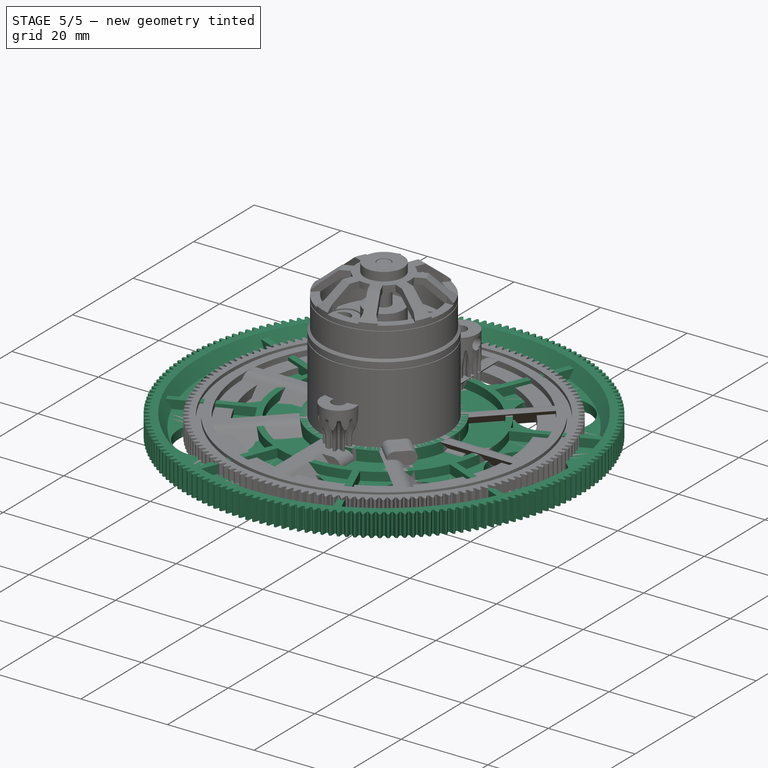
[diagram: stage 5 of 5 — iso view after this stage's code; geometry added in this stage tinted green]
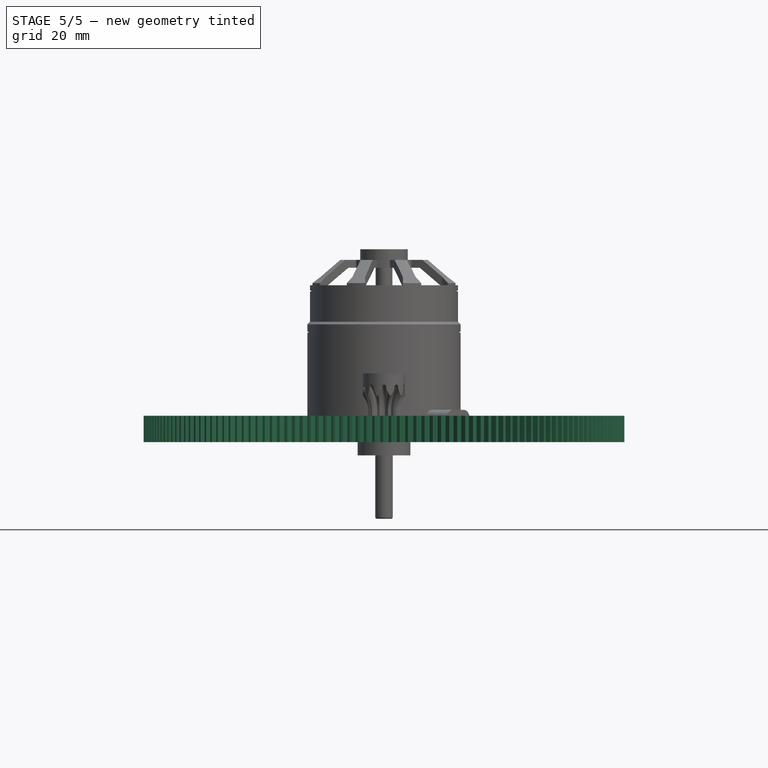
[diagram: stage 5 of 5 — front view after this stage's code; geometry added in this stage tinted green]
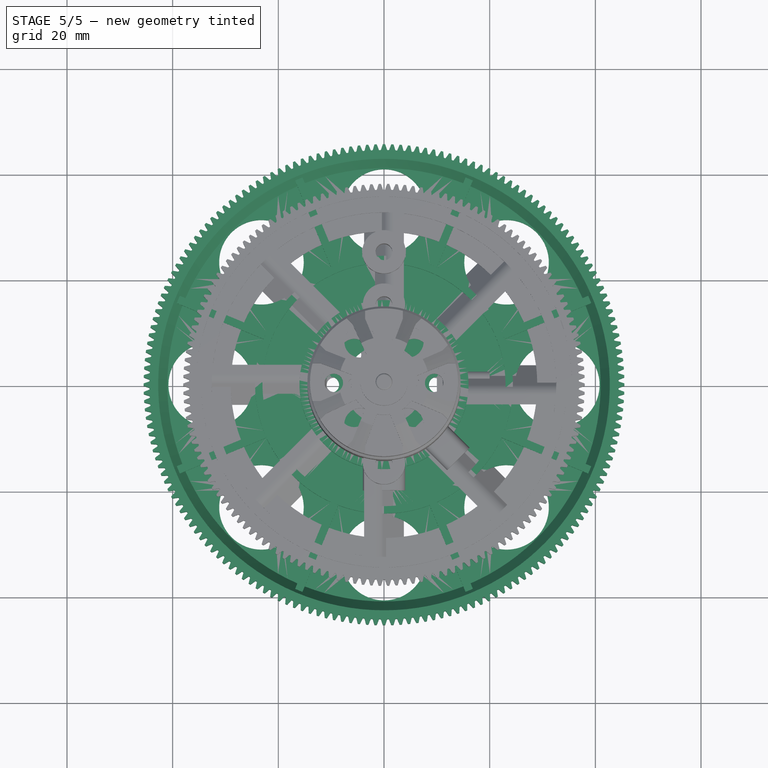
[diagram: stage 5 of 5 — top view after this stage's code; geometry added in this stage tinted green]
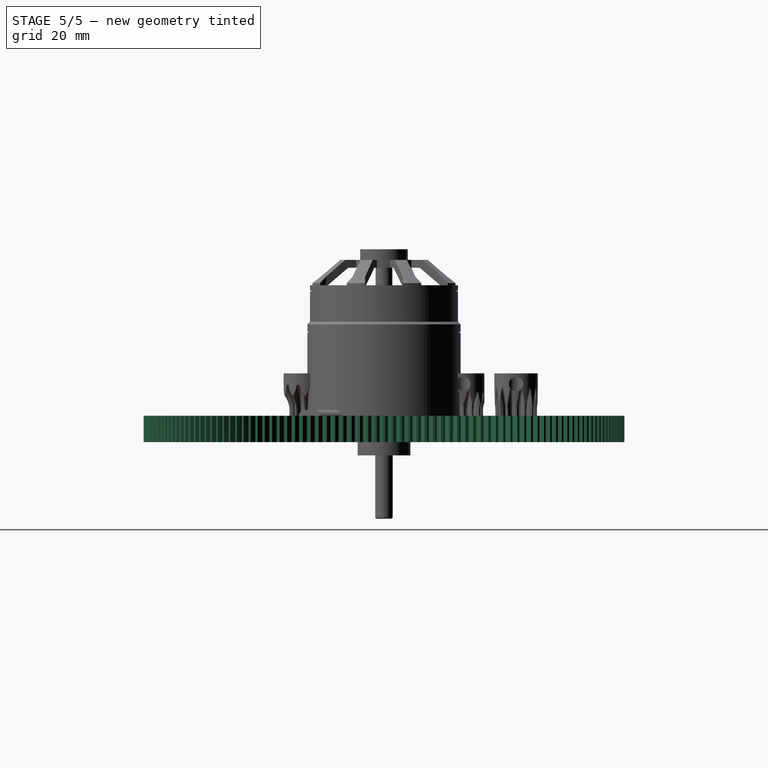
[diagram: stage 5 of 5 — right view after this stage's code; geometry added in this stage tinted green]
FEATURE [Part::Part2DObjectPython] InvoluteGear  # Draft 2D object (typed FeaturePython)
  ExternalGear = true
  HighPrecision = true
  Modules = 0.5
  NumberOfTeeth = 18
  PressureAngle = 20
FEATURE [PartDesign::Pad] Pad
  Direction = (0,0,1)
  Length = 10.5
  Length2 = 10
  Profile = -> InvoluteGear
  ReferenceAxis = -> InvoluteGear [N_Axis]
  Type = 0
FEATURE [Sketcher::SketchObject] Sketch
  ExternalGeometry = -> [Pad]
  FullyConstrained = true
  MapMode = 5
  Placement = pos=(0,0,0) rot=(1,0,0;1.5708rad)
  Support = -> [XZ_Plane]
  sketch-geometry (5):
    g0: LineSegment StartX=-4.99767 StartY=1e-16 StartZ=0 EndX=-3.83247 EndY=4 EndZ=0
    g1: LineSegment StartX=-3.83247 StartY=4 StartZ=0 EndX=0 EndY=4 EndZ=0
    g2: LineSegment StartX=-4.99767 StartY=1e-16 StartZ=0 EndX=-4.99767 EndY=-2.5 EndZ=0
    g3: LineSegment StartX=-4.99767 StartY=-2.5 StartZ=0 EndX=0 EndY=-2.5 EndZ=0
    g4: LineSegment StartX=0 StartY=-2.5 StartZ=0 EndX=0 EndY=4 EndZ=0
  constraints (14):
    c: Coincident(g-3,g0)
    c: Coincident(g0,g1)
    c: PointOnObject(g1,g-2)
    c: Horizontal(g1)
    c: DistanceY(g1) = 4
    c: PointOnObject(g0,g-4)
    c: Coincident(g0,g2)
    c: Vertical(g2)
    c: Coincident(g2,g3)
    c: PointOnObject(g3,g-2)
    c: Horizontal(g3)
    c: Coincident(g3,g4)
    c: Coincident(g4,g1)
    c: DistanceY(g2,g2) = 2.5
FEATURE [PartDesign::Revolution] Revolution
  Angle = 360
  Axis = (0,2e-16,1)
  Base = (0,0,0)
  BaseFeature = -> Pad
  Profile = -> Sketch
  ReferenceAxis = -> Sketch [V_Axis]
FEATURE [Sketcher::SketchObject] Sketch001
  FullyConstrained = true
  MapMode = 5
  Placement = pos=(0,-5e-16,-2.5) rot=(1,0,0;3.14159rad)
  Support = -> [Revolution]
  sketch-geometry (1):
    g0: Circle CenterX=0 CenterY=0 CenterZ=0 NormalX=0 NormalY=0 NormalZ=1 AngleXU=0 Radius=2.5
  constraints (2):
    c: Coincident(g0,g-1)
    c: Diameter(g0) = 5
FEATURE [PartDesign::Pocket] Pocket
  BaseFeature = -> Revolution
  Direction = (0,2e-16,1)
  Length = 5
  Length2 = 5
  Profile = -> Sketch001
  ReferenceAxis = -> Sketch001 [N_Axis]
  Type = 1
FEATURE [Sketcher::SketchObject] Sketch002
  FullyConstrained = true
  MapMode = 5
  Placement = pos=(0,0,0) rot=(1,0,0;1.5708rad)
  Support = -> [XZ_Plane]
  sketch-geometry (1):
    g0: Circle CenterX=0 CenterY=-0.4 CenterZ=0 NormalX=0 NormalY=0 NormalZ=1 AngleXU=0 Radius=1.3
  constraints (3):
    c: PointOnObject(g0,g-2)
    c: Diameter(g0) = 2.6
    c: DistanceY(g0) = -0.4
FEATURE [PartDesign::Pocket] Pocket001
  BaseFeature = -> Pocket
  Direction = (0,1,-2e-16)
  Length = 5
  Length2 = 5
  Profile = -> Sketch002
  ReferenceAxis = -> Sketch002 [N_Axis]
  Type = 1
FEATURE [PartDesign::Body] Body  label="ZahnradM05 18Z B5L"
  Group = -> [InvoluteGear,Pad,Sketch,Revolution,Sketch001,Pocket,Sketch002,Pocket001]
  Origin = -> Origin
  Placement = pos=(0,-30,0) rot=(0,0,1;0rad)
  Tip = -> Pocket001
FEATURE [Part::Part2DObjectPython] InvoluteGear001  # Draft 2D object (typed FeaturePython)
  ExternalGear = true
  HighPrecision = false
  Modules = 0.5
  NumberOfTeeth = 180
  PressureAngle = 20
FEATURE [PartDesign::Pad] Pad001  label="Profile"
  Direction = (0,0,1)
  Length = 5
  Length2 = 10
  Profile = -> InvoluteGear001
  ReferenceAxis = -> InvoluteGear001 [N_Axis]
  Type = 0
FEATURE [Sketcher::SketchObject] Sketch003
  FullyConstrained = true
  MapMode = 5
  Placement = pos=(0,0,0) rot=(0.57735,0.57735,0.57735;2.0944rad)
  Support = -> [YZ_Plane001]
  sketch-geometry (12):
    g0: LineSegment StartX=0 StartY=7 StartZ=0 EndX=0 EndY=-1 EndZ=0
    g1: LineSegment StartX=0 StartY=-1 StartZ=0 EndX=-13 EndY=-1 EndZ=0
    g2: LineSegment StartX=-13 StartY=-1 StartZ=0 EndX=-13 EndY=2 EndZ=0
    g3: LineSegment StartX=-13 StartY=2 StartZ=0 EndX=-23 EndY=2 EndZ=0
    g4: LineSegment StartX=-23 StartY=2 StartZ=0 EndX=-23 EndY=4 EndZ=0
    g5: LineSegment StartX=-23 StartY=4 StartZ=0 EndX=-24.4 EndY=4 EndZ=0
    g6: LineSegment StartX=-24.4 StartY=4 StartZ=0 EndX=-24.4 EndY=2 EndZ=0
    g7: LineSegment StartX=-24.4 StartY=2 StartZ=0 EndX=-41 EndY=2 EndZ=0
    g8: LineSegment StartX=-41 StartY=2 StartZ=0 EndX=-43.8868 EndY=7 EndZ=0
    g9: LineSegment StartX=-43.8868 StartY=7 StartZ=0 EndX=0 EndY=7 EndZ=0
    g10: GeomPoint X=13 Y=2 Z=0
    g11: GeomPoint X=23 Y=4 Z=0
  constraints (32):
    c: PointOnObject(g0,g-2)
    c: PointOnObject(g0,g-2)
    c: Coincident(g0,g1)
    c: Horizontal(g1)
    c: Coincident(g1,g2)
    c: Vertical(g2)
    c: Coincident(g2,g3)
    c: Horizontal(g3)
    c: Coincident(g3,g4)
    c: Vertical(g4)
    c: Coincident(g4,g5)
    c: Coincident(g5,g6)
    c: Coincident(g6,g7)
    c: Horizontal(g7)
    c: Coincident(g7,g8)
    c: Coincident(g8,g9)
    c: Coincident(g9,g0)
    c: Horizontal(g9)
    c: Angle(g8) = 2.0944
    c: Horizontal(g3,g6)
    c: Vertical(g6)
    c: Horizontal(g5)
    c: DistanceX(g5,g5) = 1.4
    c: DistanceY(g4,g4) = 2
    c: DistanceY(g2) = 2
    c: DistanceY(g2,g2) = 3
    c: Symmetric(g10,g2,g-2)
    c: DistanceX(g2,g10) = 26
    c: Symmetric(g4,g11,g-2)
    c: DistanceX(g4,g11) = 46
    c: DistanceX(g7) = -41
    c: DistanceY(g0,g0) = 8
FEATURE [PartDesign::Groove] Groove
  Angle = 360
  Axis = (-2e-16,3e-16,1)
  Base = (0,0,0)
  BaseFeature = -> Pad001
  Profile = -> Sketch003
  ReferenceAxis = -> Sketch003 [V_Axis]
  Reversed = true
FEATURE [Sketcher::SketchObject] Sketch004
  AttachmentOffset = pos=(0,0,1) rot=(0,0,1;0.392699rad)
  FullyConstrained = true
  MapMode = 5
  Placement = pos=(0,0,1) rot=(0,0,1;0.392699rad)
  Support = -> [XY_Plane001]
  sketch-geometry (4):
    g0: LineSegment StartX=43.5 StartY=0.75 StartZ=0 EndX=24 EndY=0.75 EndZ=0
    g1: LineSegment StartX=24 StartY=0.75 StartZ=0 EndX=24 EndY=-0.75 EndZ=0
    g2: LineSegment StartX=24 StartY=-0.75 StartZ=0 EndX=43.5 EndY=-0.75 EndZ=0
    g3: LineSegment StartX=43.5 StartY=-0.75 StartZ=0 EndX=43.5 EndY=0.75 EndZ=0
  constraints (11):
    c: Coincident(g0,g1)
    c: Coincident(g1,g2)
    c: Coincident(g2,g3)
    c: Coincident(g3,g0)
    c: Horizontal(g0)
    c: Horizontal(g2)
    c: Vertical(g1)
    c: Symmetric(g0,g2,g-1)
    c: DistanceY(g3,g3) = 1.5
    c: DistanceX(g1) = 24
    c: DistanceX(g2,g2) = 19.5
FEATURE [PartDesign::Pad] Pad002  label="Spoke001"
  BaseFeature = -> Groove
  Direction = (0,0,1)
  Length = 2.99
  Length2 = 10
  Profile = -> Sketch004
  ReferenceAxis = -> Sketch004 [N_Axis]
  Type = 0
FEATURE [PartDesign::PolarPattern] PolarPattern
  Angle = 360
  Axis = -> Sketch004 [N_Axis]
  BaseFeature = -> Pad002
  Occurrences = 8
  Originals = -> [Pad002]
  Overlap = 0
FEATURE [Sketcher::SketchObject] Sketch005
  FullyConstrained = true
  MapMode = 5
  Support = -> [XY_Plane001]
  sketch-geometry (1):
    g0: Circle CenterX=32.8 CenterY=0 CenterZ=0 NormalX=0 NormalY=0 NormalZ=1 AngleXU=0 Radius=8
  constraints (3):
    c: PointOnObject(g0,g-1)
    c: Diameter(g0) = 16
    c: DistanceX(g0) = 32.8
FEATURE [PartDesign::Pocket] Pocket002  label="Cut Out"
  BaseFeature = -> PolarPattern
  Direction = (0,0,-1)
  Length = 5
  Length2 = 5
  Midplane = true
  Profile = -> Sketch005
  ReferenceAxis = -> Sketch005 [N_Axis]
  Type = 1
FEATURE [PartDesign::PolarPattern] PolarPattern001
  Angle = 360
  Axis = -> Sketch005 [N_Axis]
  BaseFeature = -> Pocket002
  Occurrences = 8
  Originals = -> [Pocket002]
  Overlap = 0
FEATURE [Sketcher::SketchObject] Sketch006
  FullyConstrained = true
  MapMode = 5
  Support = -> [XY_Plane001]
  sketch-geometry (2):
    g0: Circle CenterX=18 CenterY=0 CenterZ=0 NormalX=0 NormalY=0 NormalZ=1 AngleXU=0 Radius=1.5
    g1: GeomPoint X=-18 Y=0 Z=0
  constraints (4):
    c: PointOnObject(g0,g-1)
    c: Diameter(g0) = 3
    c: Symmetric(g1,g0,g-2)
    c: DistanceX(g1,g0) = 36
FEATURE [PartDesign::Pocket] Pocket003  label="Mounting Hole"
  BaseFeature = -> PolarPattern001
  Direction = (0,0,-1)
  Length = 5
  Length2 = 5
  Midplane = true
  Profile = -> Sketch006
  ReferenceAxis = -> Sketch006 [N_Axis]
  Type = 1
FEATURE [PartDesign::PolarPattern] PolarPattern002
  Angle = 360
  Axis = -> Sketch006 [N_Axis]
  BaseFeature = -> Pocket003
  Occurrences = 4
  Originals = -> [Pocket003]
  Overlap = 0
FEATURE [Sketcher::SketchObject] Sketch009
  FullyConstrained = true
  MapMode = 5
  Placement = pos=(0,0,0) rot=(1,0,0;1.5708rad)
  Support = -> [XZ_Plane002]
  sketch-geometry (10):
    g0: LineSegment StartX=-16 StartY=4.5 StartZ=0 EndX=-16 EndY=0 EndZ=0
    g1: LineSegment StartX=-16 StartY=0 StartZ=0 EndX=-14.5 EndY=0 EndZ=0
    g2: LineSegment StartX=-14.5 StartY=0 StartZ=0 EndX=-14.5 EndY=0.7 EndZ=0
    g3: LineSegment StartX=-14.5 StartY=0.7 StartZ=0 EndX=-13 EndY=0.7 EndZ=0
    g4: LineSegment StartX=-13 StartY=0.7 StartZ=0 EndX=-13 EndY=0 EndZ=0
    g5: LineSegment StartX=-13 StartY=0 StartZ=0 EndX=-7.5 EndY=0 EndZ=0
    g6: LineSegment StartX=-7.5 StartY=0 StartZ=0 EndX=-7.5 EndY=2.5 EndZ=0
    g7: LineSegment StartX=-7.5 StartY=2.5 StartZ=0 EndX=-12.5 EndY=2.5 EndZ=0
    g8: LineSegment StartX=-12.5 StartY=2.5 StartZ=0 EndX=-12.5 EndY=4.5 EndZ=0
    g9: LineSegment StartX=-12.5 StartY=4.5 StartZ=0 EndX=-16 EndY=4.5 EndZ=0
  constraints (30):
    c: PointOnObject(g0,g-1)
    c: Vertical(g0)
    c: Coincident(g0,g1)
    c: PointOnObject(g1,g-1)
    c: Coincident(g1,g2)
    c: Vertical(g2)
    c: Coincident(g2,g3)
    c: Horizontal(g3)
    c: Coincident(g3,g4)
    c: Vertical(g4)
    c: Coincident(g4,g5)
    c: PointOnObject(g5,g-1)
    c: Horizontal(g5)
    c: Coincident(g5,g6)
    c: Vertical(g6)
    c: Coincident(g6,g7)
    c: Horizontal(g7)
    c: Coincident(g7,g8)
    c: Vertical(g8)
    c: Coincident(g8,g9)
    c: Coincident(g9,g0)
    c: Horizontal(g9)
    c: DistanceY(g4,g4) = 0.7
    c: Equal(g3,g1)
    c: DistanceX(g1,g1) = 1.5
    c: DistanceX(g0) = -16
    c: DistanceX(g8) = -12.5
    c: DistanceX(g6) = -7.5
    c: DistanceY(g6,g6) = 2.5
    c: DistanceY(g0,g0) = 4.5
FEATURE [PartDesign::Revolution] Revolution001  label="Hub"
  Angle = 360
  Axis = (0,-2e-16,1)
  Base = (0,0,0)
  BaseFeature = -> PolarPattern003
  Profile = -> Sketch009
  ReferenceAxis = -> Sketch009 [V_Axis]
FEATURE [Sketcher::SketchObject] Sketch010
  FullyConstrained = true
  MapMode = 5
  Support = -> [XY_Plane002]
  sketch-geometry (1):
    g0: Circle CenterX=10 CenterY=0 CenterZ=0 NormalX=0 NormalY=0 NormalZ=1 AngleXU=0 Radius=1.5
  constraints (3):
    c: PointOnObject(g0,g-1)
    c: Diameter(g0) = 3
    c: DistanceX(g0) = 10
FEATURE [PartDesign::Pocket] Pocket004
  BaseFeature = -> Revolution001
  Direction = (0,0,-1)
  Length = 5
  Length2 = 5
  Midplane = true
  Profile = -> Sketch010
  ReferenceAxis = -> Sketch010 [N_Axis]
  Type = 1
FEATURE [PartDesign::PolarPattern] PolarPattern004
  Angle = 360
  Axis = -> Sketch010 [N_Axis]
  BaseFeature = -> Pocket004
  Occurrences = 4
  Originals = -> [Pocket004]
  Overlap = 0
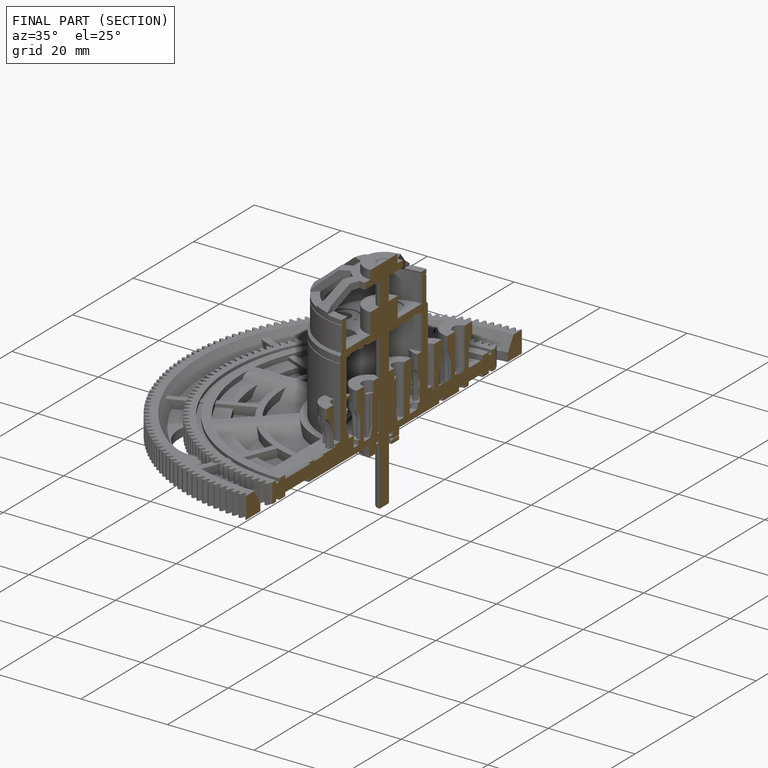
[diagram: finished part — half-section view (interior)]
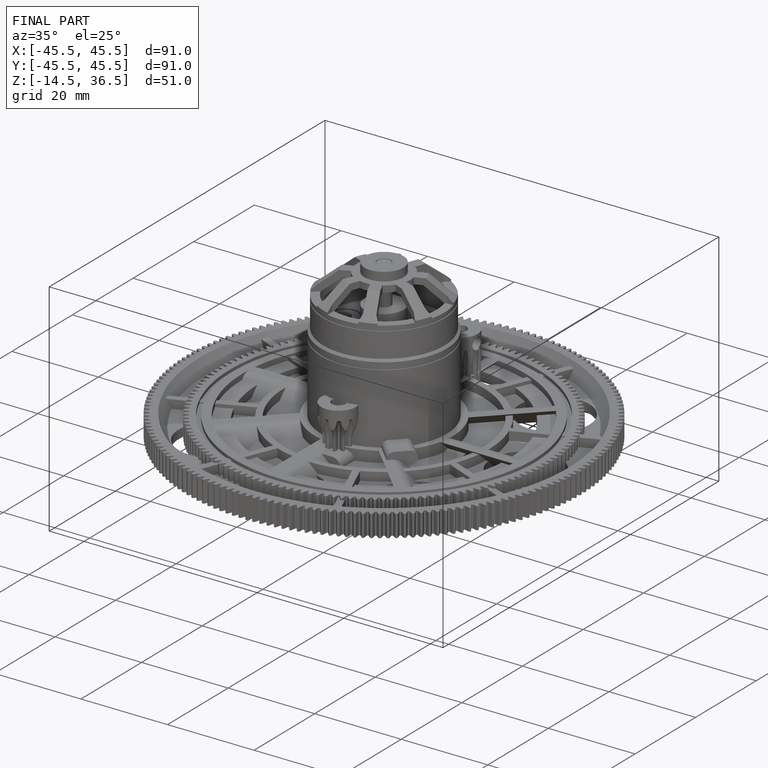
[diagram: finished part — iso view with bounding-box wireframe]
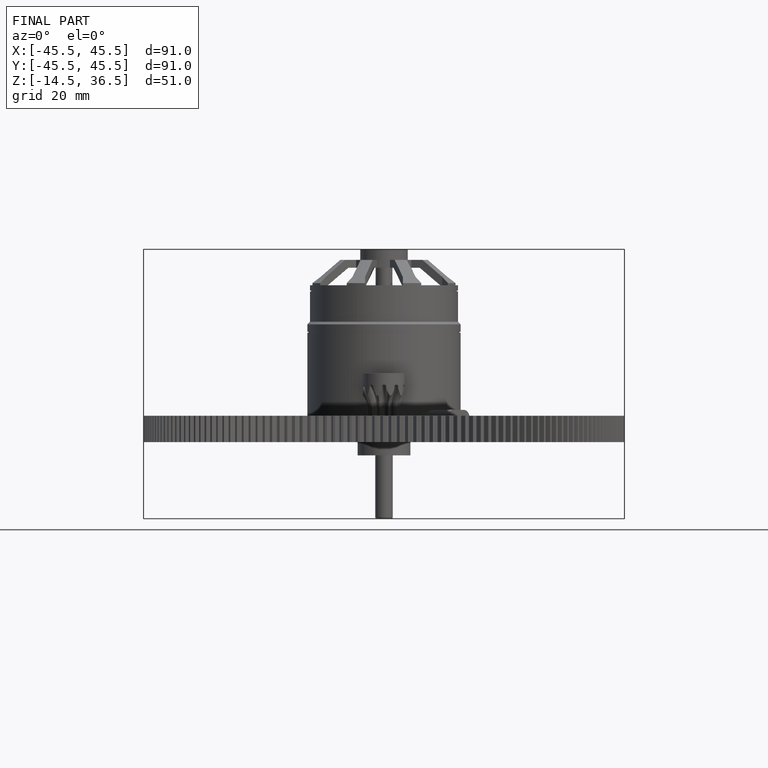
[diagram: finished part — front view with bounding-box wireframe]
